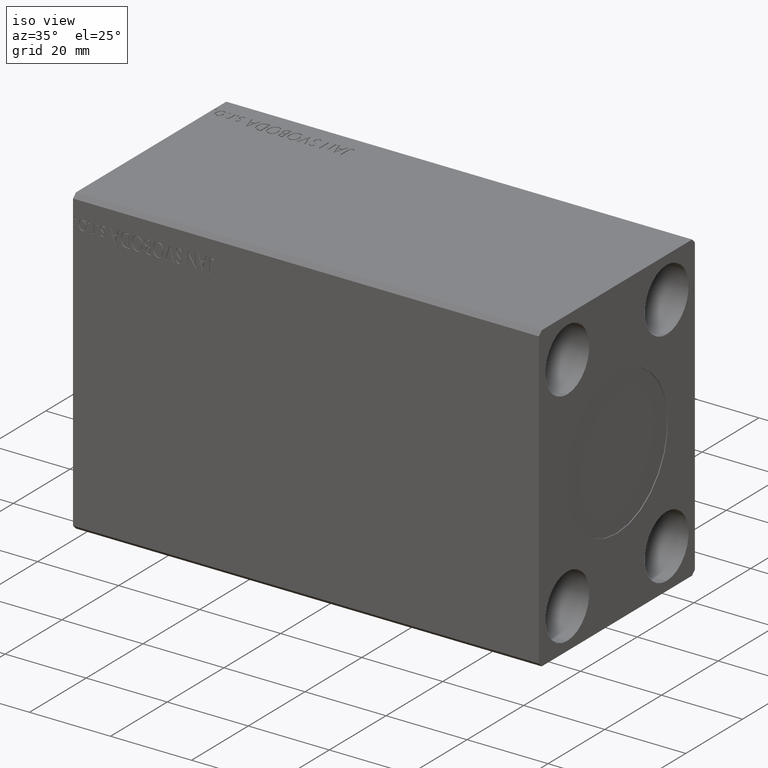
[diagram: clean part render]
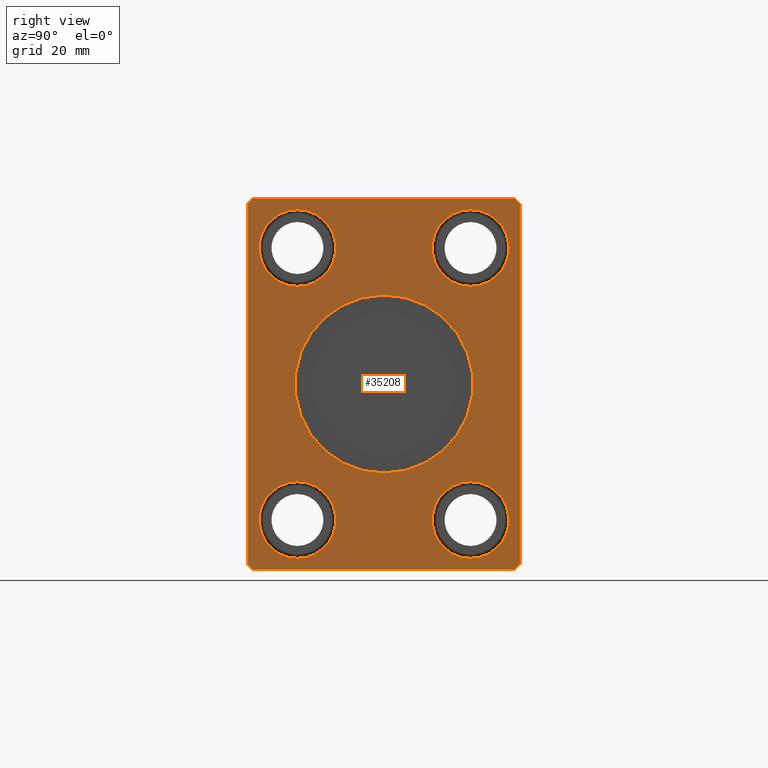
[diagram: tour spotlight — one face highlighted and labeled with its STEP entity id]
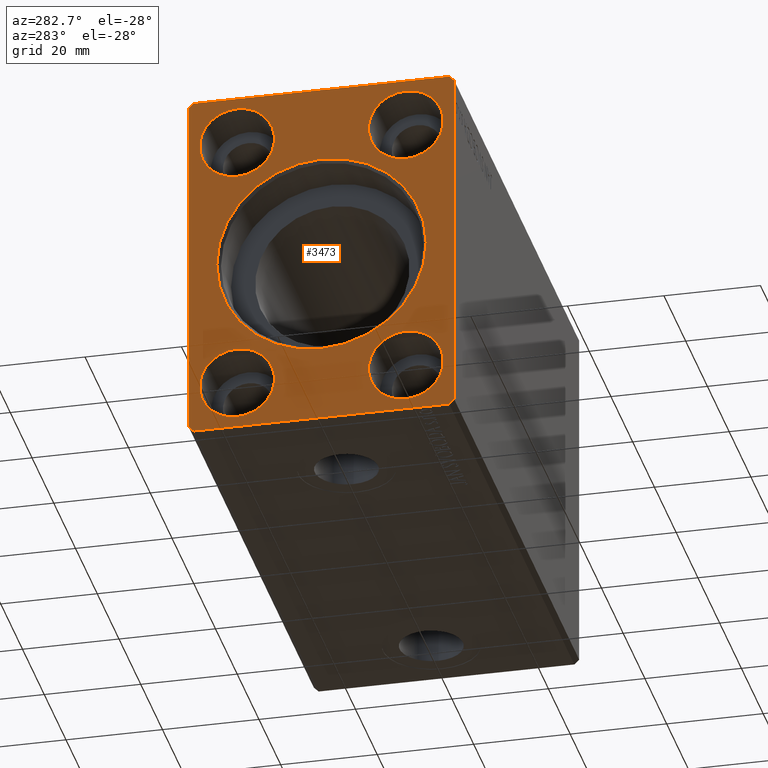
[diagram: tour spotlight — one face highlighted and labeled with its STEP entity id]
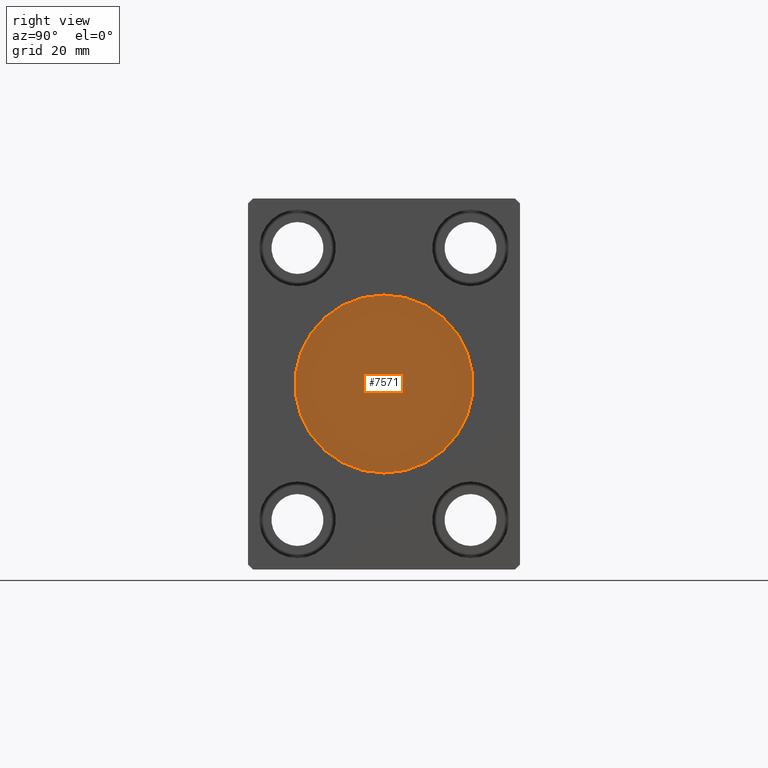
[diagram: tour spotlight — one face highlighted and labeled with its STEP entity id]
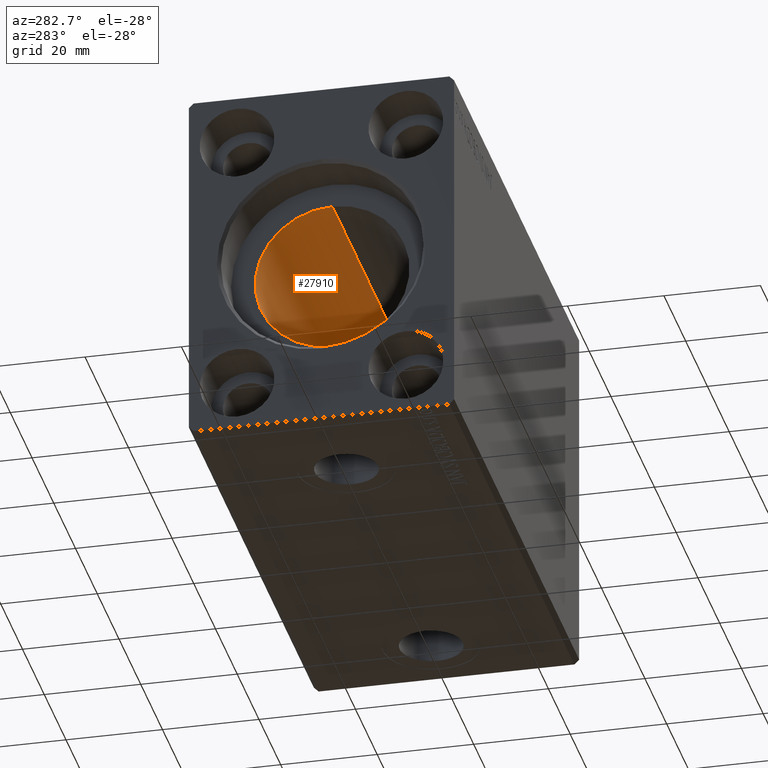
[diagram: tour spotlight — one face highlighted and labeled with its STEP entity id]
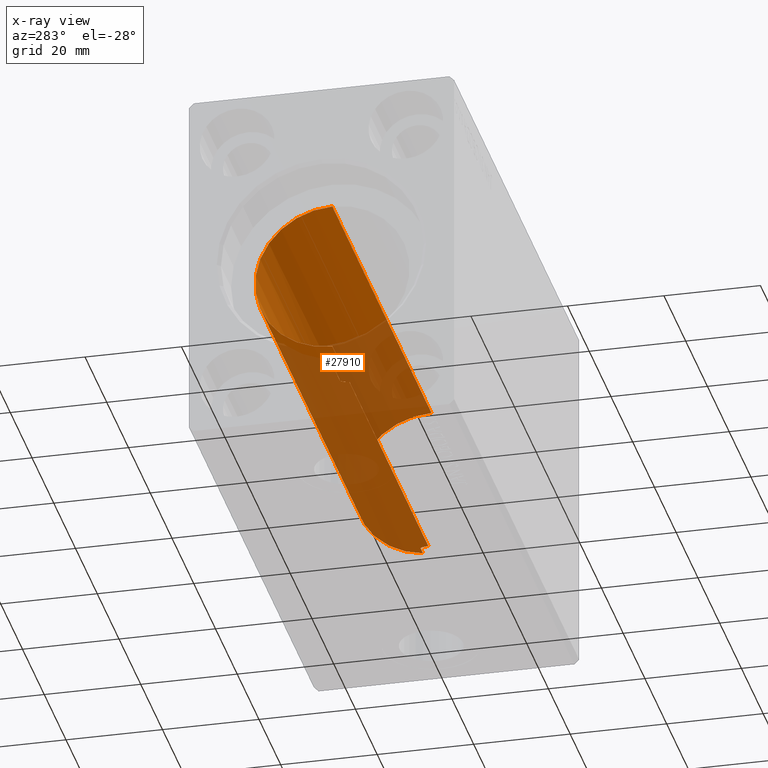
[diagram: x-ray of the same camera — body ghosted, this tour face saturated]
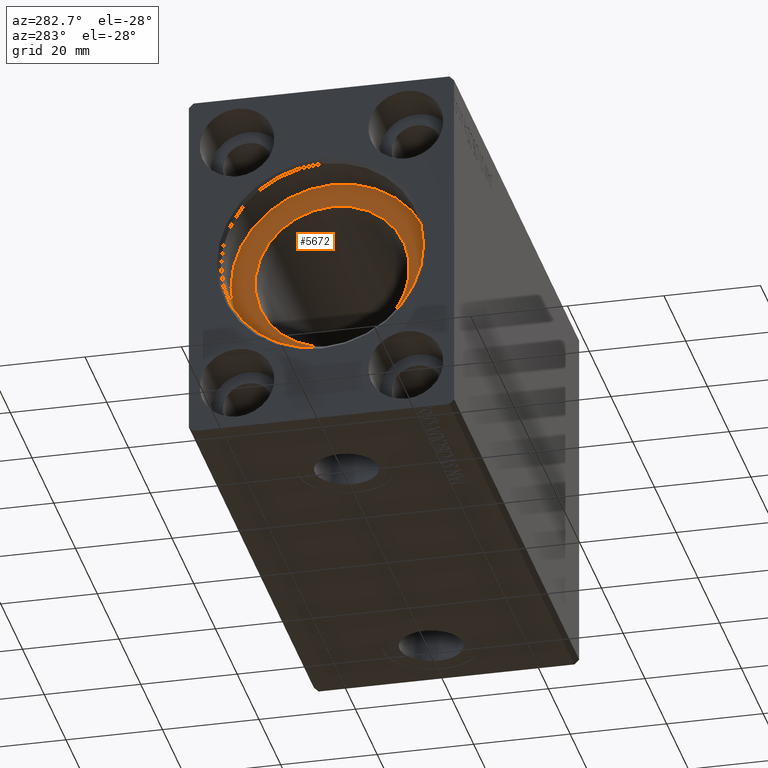
[diagram: tour spotlight — one face highlighted and labeled with its STEP entity id]
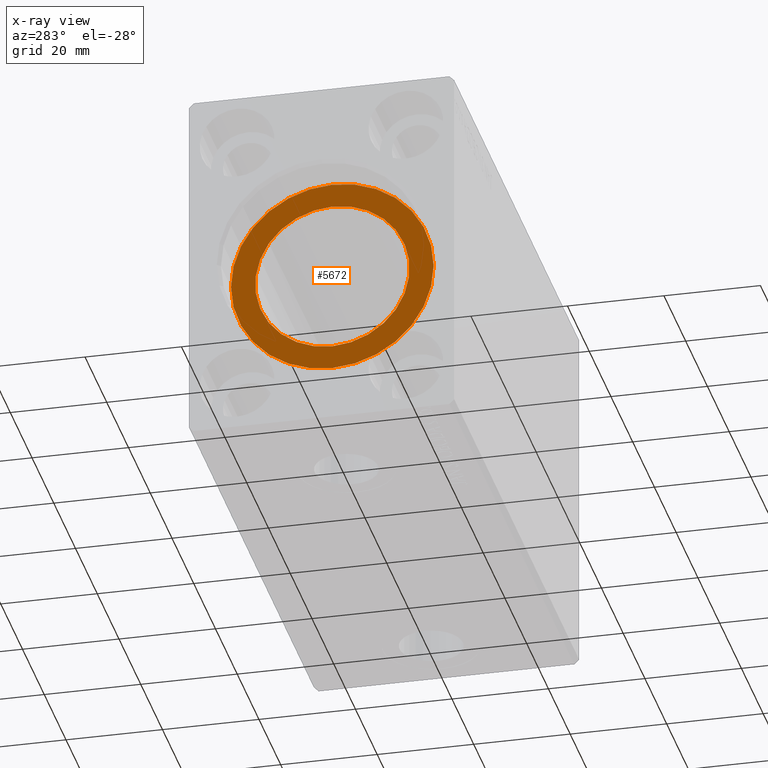
[diagram: x-ray of the same camera — body ghosted, this tour face saturated]
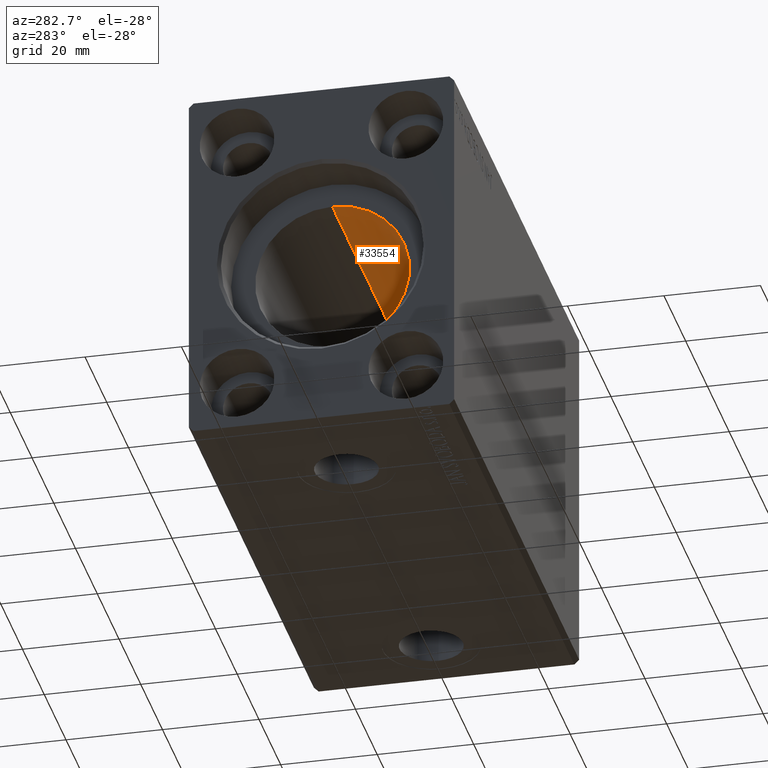
[diagram: tour spotlight — one face highlighted and labeled with its STEP entity id]
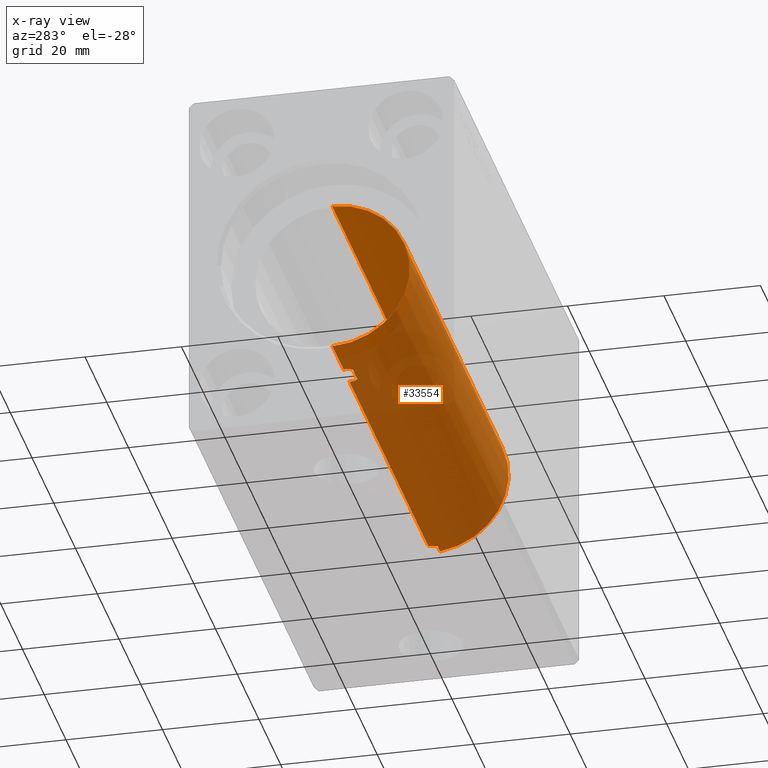
[diagram: x-ray of the same camera — body ghosted, this tour face saturated]
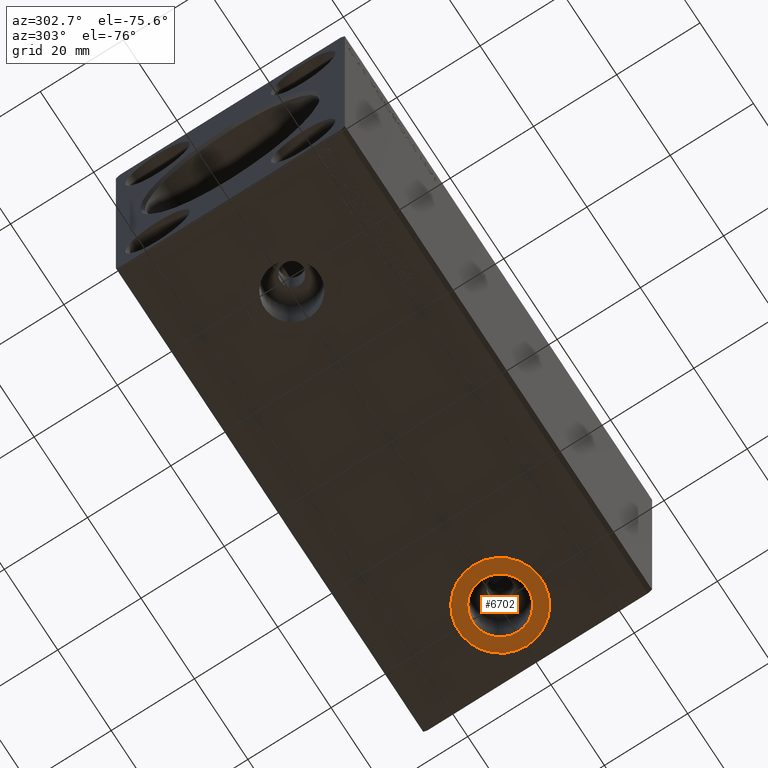
[diagram: tour spotlight — one face highlighted and labeled with its STEP entity id]
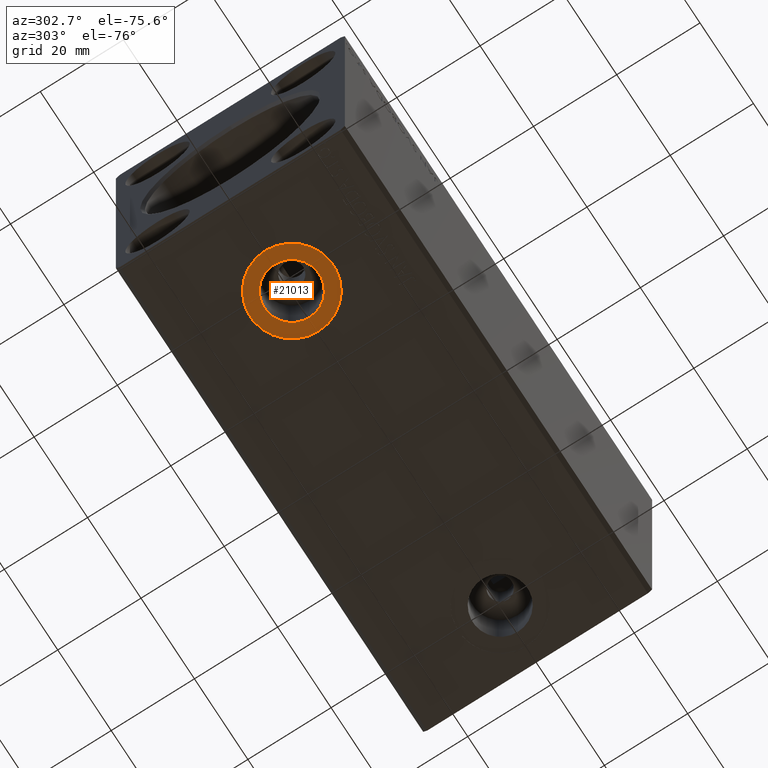
[diagram: tour spotlight — one face highlighted and labeled with its STEP entity id]
A machine part: a face-by-face anatomy tour. The part has 826 B-rep faces; the first image is the clean iso view, then the 8 largest visible faces are spotlighted one at a time (largest first), each with its STEP entity span.

Face 1 — right view, entity #35208. In plain terms, the highlighted planar face has unit normal (1, 0, 0).
Definition (entity closure, byte-faithful):
#224 = EDGE_LOOP ( 'NONE', ( #25638, #6411 ) ) ;
#368 = DIRECTION ( 'NONE',  ( 0.000000000000000000, -1.000000000000000000, 0.000000000000000000 ) ) ;
#565 = CARTESIAN_POINT ( 'NONE',  ( 115.0000000000000000, 26.50000000000000711, -37.49999999999999289 ) ) ;
#572 = CARTESIAN_POINT ( 'NONE',  ( 115.0000000000000000, 26.50000000000000355, 37.50000000000000711 ) ) ;
#679 = LINE ( 'NONE', #39710, #15360 ) ;
#695 = AXIS2_PLACEMENT_3D ( 'NONE', #14157, #40026, #10512 ) ;
#823 = VERTEX_POINT ( 'NONE', #37144 ) ;
#930 = CIRCLE ( 'NONE', #1612, 7.750000000000003553 ) ;
#1387 = CIRCLE ( 'NONE', #37200, 18.00000000000000000 ) ;
#1612 = AXIS2_PLACEMENT_3D ( 'NONE', #4254, #13347, #7089 ) ;
#1823 = CARTESIAN_POINT ( 'NONE',  ( 115.0000000000000000, -17.50000000000000000, -19.74999999999999645 ) ) ;
#2153 = EDGE_LOOP ( 'NONE', ( #17379, #29488 ) ) ;
#2545 = CARTESIAN_POINT ( 'NONE',  ( 115.0000000000000000, -27.50000000000000355, -36.49999999999998579 ) ) ;
#3000 = DIRECTION ( 'NONE',  ( 1.000000000000000000, 0.000000000000000000, 0.000000000000000000 ) ) ;
#3503 = CARTESIAN_POINT ( 'NONE',  ( 115.0000000000000000, 26.50000000000000355, 37.50000000000000711 ) ) ;
#3868 = EDGE_CURVE ( 'NONE', #25476, #28021, #7664, .T. ) ;
#4254 = CARTESIAN_POINT ( 'NONE',  ( 115.0000000000000000, -17.50000000000000000, 27.50000000000000000 ) ) ;
#4608 = CARTESIAN_POINT ( 'NONE',  ( 115.0000000000000000, -17.50000000000000000, 19.74999999999999645 ) ) ;
#4632 = CARTESIAN_POINT ( 'NONE',  ( 115.0000000000000000, -27.50000000000000711, 36.50000000000000711 ) ) ;
#4681 = EDGE_CURVE ( 'NONE', #12602, #6986, #33253, .T. ) ;
#5219 = CARTESIAN_POINT ( 'NONE',  ( 115.0000000000000000, -26.50000000000000711, 37.50000000000000711 ) ) ;
#5475 = CARTESIAN_POINT ( 'NONE',  ( 115.0000000000000000, 17.50000000000000000, 27.50000000000000000 ) ) ;
#5560 = DIRECTION ( 'NONE',  ( 0.000000000000000000, 1.000000000000000000, 0.000000000000000000 ) ) ;
#5868 = DIRECTION ( 'NONE',  ( 0.000000000000000000, -0.7071067811865474617, -0.7071067811865474617 ) ) ;
#6013 = FACE_BOUND ( 'NONE', #31904, .T. ) ;
#6411 = ORIENTED_EDGE ( 'NONE', *, *, #41131, .F. ) ;
#6721 = ORIENTED_EDGE ( 'NONE', *, *, #39267, .T. ) ;
#6986 = VERTEX_POINT ( 'NONE', #1823 ) ;
#7079 = AXIS2_PLACEMENT_3D ( 'NONE', #10212, #14074, #20542 ) ;
#7089 = DIRECTION ( 'NONE',  ( 0.000000000000000000, 0.000000000000000000, 1.000000000000000000 ) ) ;
#7244 = LINE ( 'NONE', #17771, #8452 ) ;
#7312 = EDGE_LOOP ( 'NONE', ( #31000, #10648, #35240, #8960, #29915, #32213, #6721, #22187 ) ) ;
#7664 = LINE ( 'NONE', #4632, #12579 ) ;
#7701 = DIRECTION ( 'NONE',  ( 0.000000000000000000, 0.000000000000000000, -1.000000000000000000 ) ) ;
#7734 = CIRCLE ( 'NONE', #7079, 7.750000000000003553 ) ;
#7875 = EDGE_CURVE ( 'NONE', #8953, #25476, #35404, .T. ) ;
#8286 = CIRCLE ( 'NONE', #42008, 7.750000000000003553 ) ;
#8449 = CARTESIAN_POINT ( 'NONE',  ( 115.0000000000000000, 27.50000000000000711, -36.49999999999999289 ) ) ;
#8452 = VECTOR ( 'NONE', #17146, 1000.000000000000114 ) ;
#8473 = AXIS2_PLACEMENT_3D ( 'NONE', #20905, #23501, #20291 ) ;
#8809 = CARTESIAN_POINT ( 'NONE',  ( 115.0000000000000000, -26.50000000000000355, -37.49999999999999289 ) ) ;
#8953 = VERTEX_POINT ( 'NONE', #26707 ) ;
#8960 = ORIENTED_EDGE ( 'NONE', *, *, #3868, .T. ) ;
#9010 = LINE ( 'NONE', #2545, #27637 ) ;
#9403 = VERTEX_POINT ( 'NONE', #40854 ) ;
#9677 = FACE_BOUND ( 'NONE', #224, .T. ) ;
#9985 = CARTESIAN_POINT ( 'NONE',  ( 115.0000000000000000, -27.50000000000000711, 36.50000000000000711 ) ) ;
#10212 = CARTESIAN_POINT ( 'NONE',  ( 115.0000000000000000, -17.50000000000000000, -27.50000000000000000 ) ) ;
#10512 = DIRECTION ( 'NONE',  ( 0.000000000000000000, 0.000000000000000000, 1.000000000000000000 ) ) ;
#10648 = ORIENTED_EDGE ( 'NONE', *, *, #14906, .T. ) ;
#10894 = DIRECTION ( 'NONE',  ( 0.000000000000000000, 4.752667057470705491E-17, -1.000000000000000000 ) ) ;
#11003 = VERTEX_POINT ( 'NONE', #33714 ) ;
#11673 = LINE ( 'NONE', #8449, #38039 ) ;
#12060 = LINE ( 'NONE', #8809, #31068 ) ;
#12579 = VECTOR ( 'NONE', #10894, 1000.000000000000000 ) ;
#12602 = VERTEX_POINT ( 'NONE', #40301 ) ;
#13192 = CIRCLE ( 'NONE', #22861, 7.750000000000003553 ) ;
#13347 = DIRECTION ( 'NONE',  ( -1.000000000000000000, -0.000000000000000000, -0.000000000000000000 ) ) ;
#14074 = DIRECTION ( 'NONE',  ( 1.000000000000000000, -0.000000000000000000, -0.000000000000000000 ) ) ;
#14147 = LINE ( 'NONE', #572, #24174 ) ;
#14157 = CARTESIAN_POINT ( 'NONE',  ( 115.0000000000000000, 17.50000000000000000, -27.50000000000000000 ) ) ;
#14235 = VERTEX_POINT ( 'NONE', #565 ) ;
#14863 = EDGE_LOOP ( 'NONE', ( #28841, #27924 ) ) ;
#14906 = EDGE_CURVE ( 'NONE', #27028, #8953, #14147, .T. ) ;
#14999 = DIRECTION ( 'NONE',  ( 1.000000000000000000, 0.000000000000000000, 0.000000000000000000 ) ) ;
#15360 = VECTOR ( 'NONE', #26975, 1000.000000000000114 ) ;
#15688 = DIRECTION ( 'NONE',  ( 0.000000000000000000, 0.7071067811865451302, -0.7071067811865500152 ) ) ;
#15947 = EDGE_CURVE ( 'NONE', #823, #14235, #12060, .T. ) ;
#16152 = DIRECTION ( 'NONE',  ( 0.000000000000000000, 0.000000000000000000, -1.000000000000000000 ) ) ;
#16792 = CARTESIAN_POINT ( 'NONE',  ( 115.0000000000000000, 2.204364238465235428E-15, 18.00000000000000000 ) ) ;
#17146 = DIRECTION ( 'NONE',  ( 0.000000000000000000, 0.7071067811865474617, 0.7071067811865474617 ) ) ;
#17379 = ORIENTED_EDGE ( 'NONE', *, *, #42020, .T. ) ;
#17484 = VECTOR ( 'NONE', #5868, 1000.000000000000114 ) ;
#17707 = CARTESIAN_POINT ( 'NONE',  ( 115.0000000000000000, 27.50000000000000711, -36.49999999999999289 ) ) ;
#17771 = CARTESIAN_POINT ( 'NONE',  ( 115.0000000000000000, 26.50000000000000711, -37.49999999999999289 ) ) ;
#18029 = CARTESIAN_POINT ( 'NONE',  ( 115.0000000000000000, 0.000000000000000000, 0.000000000000000000 ) ) ;
#19382 = CARTESIAN_POINT ( 'NONE',  ( 115.0000000000000000, 0.000000000000000000, 0.000000000000000000 ) ) ;
#19811 = ORIENTED_EDGE ( 'NONE', *, *, #4681, .F. ) ;
#20147 = EDGE_CURVE ( 'NONE', #42534, #41281, #11673, .T. ) ;
#20291 = DIRECTION ( 'NONE',  ( 0.000000000000000000, 0.000000000000000000, -1.000000000000000000 ) ) ;
#20542 = DIRECTION ( 'NONE',  ( 0.000000000000000000, 0.000000000000000000, -1.000000000000000000 ) ) ;
#20905 = CARTESIAN_POINT ( 'NONE',  ( 115.0000000000000000, 17.50000000000000000, 27.50000000000000000 ) ) ;
#20969 = CARTESIAN_POINT ( 'NONE',  ( 115.0000000000000000, 17.50000000000000000, -35.25000000000000000 ) ) ;
#21079 = CARTESIAN_POINT ( 'NONE',  ( 115.0000000000000000, 0.000000000000000000, -18.00000000000000000 ) ) ;
#22158 = CARTESIAN_POINT ( 'NONE',  ( 115.0000000000000000, -17.50000000000000000, -27.50000000000000000 ) ) ;
#22187 = ORIENTED_EDGE ( 'NONE', *, *, #20147, .T. ) ;
#22610 = FACE_BOUND ( 'NONE', #35058, .T. ) ;
#22861 = AXIS2_PLACEMENT_3D ( 'NONE', #5475, #37596, #28111 ) ;
#23501 = DIRECTION ( 'NONE',  ( 1.000000000000000000, -0.000000000000000000, -0.000000000000000000 ) ) ;
#23503 = CIRCLE ( 'NONE', #26229, 18.00000000000000000 ) ;
#23627 = AXIS2_PLACEMENT_3D ( 'NONE', #22158, #35310, #32926 ) ;
#24142 = VERTEX_POINT ( 'NONE', #21079 ) ;
#24174 = VECTOR ( 'NONE', #368, 1000.000000000000000 ) ;
#24937 = EDGE_CURVE ( 'NONE', #38898, #32970, #27445, .T. ) ;
#25476 = VERTEX_POINT ( 'NONE', #9985 ) ;
#25609 = CARTESIAN_POINT ( 'NONE',  ( 115.0000000000000000, 17.50000000000000000, -19.74999999999999645 ) ) ;
#25638 = ORIENTED_EDGE ( 'NONE', *, *, #36613, .F. ) ;
#26057 = FACE_OUTER_BOUND ( 'NONE', #7312, .T. ) ;
#26093 = AXIS2_PLACEMENT_3D ( 'NONE', #42608, #42404, #39797 ) ;
#26229 = AXIS2_PLACEMENT_3D ( 'NONE', #30337, #27116, #7701 ) ;
#26707 = CARTESIAN_POINT ( 'NONE',  ( 115.0000000000000000, -26.50000000000000711, 37.50000000000000711 ) ) ;
#26840 = EDGE_CURVE ( 'NONE', #32970, #38898, #39258, .T. ) ;
#26975 = DIRECTION ( 'NONE',  ( 0.000000000000000000, -0.7071067811865474617, 0.7071067811865474617 ) ) ;
#27028 = VERTEX_POINT ( 'NONE', #3503 ) ;
#27063 = CIRCLE ( 'NONE', #8473, 7.750000000000003553 ) ;
#27116 = DIRECTION ( 'NONE',  ( 1.000000000000000000, 0.000000000000000000, 0.000000000000000000 ) ) ;
#27125 = ORIENTED_EDGE ( 'NONE', *, *, #26840, .T. ) ;
#27445 = CIRCLE ( 'NONE', #26093, 7.750000000000003553 ) ;
#27637 = VECTOR ( 'NONE', #15688, 1000.000000000000114 ) ;
#27780 = EDGE_CURVE ( 'NONE', #24142, #42124, #1387, .T. ) ;
#27924 = ORIENTED_EDGE ( 'NONE', *, *, #35359, .F. ) ;
#28021 = VERTEX_POINT ( 'NONE', #34577 ) ;
#28111 = DIRECTION ( 'NONE',  ( 0.000000000000000000, 0.000000000000000000, -1.000000000000000000 ) ) ;
#28149 = DIRECTION ( 'NONE',  ( 0.000000000000000000, 0.000000000000000000, -1.000000000000000000 ) ) ;
#28720 = EDGE_CURVE ( 'NONE', #11003, #34419, #8286, .T. ) ;
#28841 = ORIENTED_EDGE ( 'NONE', *, *, #27780, .F. ) ;
#29488 = ORIENTED_EDGE ( 'NONE', *, *, #28720, .T. ) ;
#29915 = ORIENTED_EDGE ( 'NONE', *, *, #32902, .T. ) ;
#29930 = CARTESIAN_POINT ( 'NONE',  ( 115.0000000000000000, 27.50000000000000355, 36.50000000000000711 ) ) ;
#30337 = CARTESIAN_POINT ( 'NONE',  ( 115.0000000000000000, 0.000000000000000000, 0.000000000000000000 ) ) ;
#31000 = ORIENTED_EDGE ( 'NONE', *, *, #40275, .T. ) ;
#31068 = VECTOR ( 'NONE', #5560, 1000.000000000000000 ) ;
#31904 = EDGE_LOOP ( 'NONE', ( #33911, #27125 ) ) ;
#32213 = ORIENTED_EDGE ( 'NONE', *, *, #15947, .T. ) ;
#32902 = EDGE_CURVE ( 'NONE', #28021, #823, #9010, .T. ) ;
#32926 = DIRECTION ( 'NONE',  ( 0.000000000000000000, 0.000000000000000000, -1.000000000000000000 ) ) ;
#32970 = VERTEX_POINT ( 'NONE', #25609 ) ;
#33253 = CIRCLE ( 'NONE', #23627, 7.750000000000003553 ) ;
#33714 = CARTESIAN_POINT ( 'NONE',  ( 115.0000000000000000, -17.50000000000000000, 35.25000000000000000 ) ) ;
#33911 = ORIENTED_EDGE ( 'NONE', *, *, #24937, .T. ) ;
#34419 = VERTEX_POINT ( 'NONE', #4608 ) ;
#34577 = CARTESIAN_POINT ( 'NONE',  ( 115.0000000000000000, -27.50000000000000355, -36.49999999999998579 ) ) ;
#34871 = DIRECTION ( 'NONE',  ( 0.000000000000000000, 0.000000000000000000, 1.000000000000000000 ) ) ;
#35058 = EDGE_LOOP ( 'NONE', ( #19811, #40029 ) ) ;
#35194 = DIRECTION ( 'NONE',  ( -1.000000000000000000, -0.000000000000000000, -0.000000000000000000 ) ) ;
#35208 = ADVANCED_FACE ( 'NONE', ( #38775, #36189, #6013, #26057, #22610, #9677 ), #35757, .T. ) ;
#35240 = ORIENTED_EDGE ( 'NONE', *, *, #7875, .T. ) ;
#35310 = DIRECTION ( 'NONE',  ( 1.000000000000000000, -0.000000000000000000, -0.000000000000000000 ) ) ;
#35359 = EDGE_CURVE ( 'NONE', #42124, #24142, #23503, .T. ) ;
#35404 = LINE ( 'NONE', #5219, #17484 ) ;
#35757 = PLANE ( 'NONE',  #35896 ) ;
#35896 = AXIS2_PLACEMENT_3D ( 'NONE', #19382, #3000, #16152 ) ;
#36189 = FACE_BOUND ( 'NONE', #2153, .T. ) ;
#36244 = VERTEX_POINT ( 'NONE', #37023 ) ;
#36613 = EDGE_CURVE ( 'NONE', #36244, #9403, #13192, .T. ) ;
#37023 = CARTESIAN_POINT ( 'NONE',  ( 115.0000000000000000, 17.50000000000000000, 19.74999999999999645 ) ) ;
#37144 = CARTESIAN_POINT ( 'NONE',  ( 115.0000000000000000, -26.50000000000000355, -37.49999999999999289 ) ) ;
#37200 = AXIS2_PLACEMENT_3D ( 'NONE', #18029, #14999, #28149 ) ;
#37596 = DIRECTION ( 'NONE',  ( 1.000000000000000000, -0.000000000000000000, -0.000000000000000000 ) ) ;
#38039 = VECTOR ( 'NONE', #41412, 1000.000000000000000 ) ;
#38731 = EDGE_CURVE ( 'NONE', #6986, #12602, #7734, .T. ) ;
#38775 = FACE_BOUND ( 'NONE', #14863, .T. ) ;
#38898 = VERTEX_POINT ( 'NONE', #20969 ) ;
#39258 = CIRCLE ( 'NONE', #695, 7.750000000000003553 ) ;
#39267 = EDGE_CURVE ( 'NONE', #14235, #42534, #7244, .T. ) ;
#39710 = CARTESIAN_POINT ( 'NONE',  ( 115.0000000000000000, 27.50000000000000355, 36.50000000000000711 ) ) ;
#39797 = DIRECTION ( 'NONE',  ( 0.000000000000000000, 0.000000000000000000, 1.000000000000000000 ) ) ;
#40026 = DIRECTION ( 'NONE',  ( -1.000000000000000000, -0.000000000000000000, -0.000000000000000000 ) ) ;
#40029 = ORIENTED_EDGE ( 'NONE', *, *, #38731, .F. ) ;
#40275 = EDGE_CURVE ( 'NONE', #41281, #27028, #679, .T. ) ;
#40301 = CARTESIAN_POINT ( 'NONE',  ( 115.0000000000000000, -17.50000000000000000, -35.25000000000000000 ) ) ;
#40854 = CARTESIAN_POINT ( 'NONE',  ( 115.0000000000000000, 17.50000000000000000, 35.25000000000000000 ) ) ;
#41131 = EDGE_CURVE ( 'NONE', #9403, #36244, #27063, .T. ) ;
#41281 = VERTEX_POINT ( 'NONE', #29930 ) ;
#41412 = DIRECTION ( 'NONE',  ( 0.000000000000000000, -4.752667057470704875E-17, 1.000000000000000000 ) ) ;
#41445 = CARTESIAN_POINT ( 'NONE',  ( 115.0000000000000000, -17.50000000000000000, 27.50000000000000000 ) ) ;
#42008 = AXIS2_PLACEMENT_3D ( 'NONE', #41445, #35194, #34871 ) ;
#42020 = EDGE_CURVE ( 'NONE', #34419, #11003, #930, .T. ) ;
#42124 = VERTEX_POINT ( 'NONE', #16792 ) ;
#42404 = DIRECTION ( 'NONE',  ( -1.000000000000000000, -0.000000000000000000, -0.000000000000000000 ) ) ;
#42534 = VERTEX_POINT ( 'NONE', #17707 ) ;
#42608 = CARTESIAN_POINT ( 'NONE',  ( 115.0000000000000000, 17.50000000000000000, -27.50000000000000000 ) ) ;

Face 2 — auxiliary view, entity #3473. In plain terms, the highlighted planar face has unit normal (1, 0, 0).
Definition (entity closure, byte-faithful):
#1026 = CARTESIAN_POINT ( 'NONE',  ( 0.000000000000000000, 27.50000000000000355, 36.50000000000000711 ) ) ;
#1263 = CARTESIAN_POINT ( 'NONE',  ( 0.000000000000000000, 26.50000000000000355, 37.50000000000000711 ) ) ;
#1293 = CARTESIAN_POINT ( 'NONE',  ( 0.000000000000000000, -17.50000000000000000, 35.25000000000000000 ) ) ;
#1318 = VERTEX_POINT ( 'NONE', #20678 ) ;
#1332 = VECTOR ( 'NONE', #31051, 1000.000000000000000 ) ;
#1367 = ORIENTED_EDGE ( 'NONE', *, *, #3395, .T. ) ;
#2006 = DIRECTION ( 'NONE',  ( 1.000000000000000000, -0.000000000000000000, -0.000000000000000000 ) ) ;
#2164 = ORIENTED_EDGE ( 'NONE', *, *, #12506, .F. ) ;
#2267 = CARTESIAN_POINT ( 'NONE',  ( 0.000000000000000000, 17.50000000000000000, -27.50000000000000000 ) ) ;
#2383 = CARTESIAN_POINT ( 'NONE',  ( 0.000000000000000000, 0.000000000000000000, 0.000000000000000000 ) ) ;
#2520 = EDGE_LOOP ( 'NONE', ( #36265, #21248 ) ) ;
#2835 = AXIS2_PLACEMENT_3D ( 'NONE', #14199, #40912, #10954 ) ;
#2989 = CIRCLE ( 'NONE', #7776, 7.750000000000003553 ) ;
#3023 = DIRECTION ( 'NONE',  ( 1.000000000000000000, 0.000000000000000000, 0.000000000000000000 ) ) ;
#3221 = EDGE_LOOP ( 'NONE', ( #40635, #30421 ) ) ;
#3327 = EDGE_CURVE ( 'NONE', #1318, #9708, #20810, .T. ) ;
#3395 = EDGE_CURVE ( 'NONE', #9708, #1318, #7066, .T. ) ;
#3473 = ADVANCED_FACE ( 'NONE', ( #16371, #29530, #31908, #21987, #26293, #35128 ), #5593, .F. ) ;
#3661 = CARTESIAN_POINT ( 'NONE',  ( 0.000000000000000000, 17.50000000000000000, -35.25000000000000000 ) ) ;
#3954 = ORIENTED_EDGE ( 'NONE', *, *, #11135, .T. ) ;
#4226 = VECTOR ( 'NONE', #39041, 1000.000000000000000 ) ;
#4276 = AXIS2_PLACEMENT_3D ( 'NONE', #18123, #20936, #41377 ) ;
#4901 = VERTEX_POINT ( 'NONE', #19948 ) ;
#5319 = VERTEX_POINT ( 'NONE', #19544 ) ;
#5513 = CARTESIAN_POINT ( 'NONE',  ( 0.000000000000000000, 27.50000000000000711, -36.49999999999999289 ) ) ;
#5593 = PLANE ( 'NONE',  #13946 ) ;
#6054 = VERTEX_POINT ( 'NONE', #5513 ) ;
#6864 = LINE ( 'NONE', #1026, #34502 ) ;
#7066 = CIRCLE ( 'NONE', #9805, 21.70000000000003837 ) ;
#7195 = VERTEX_POINT ( 'NONE', #10829 ) ;
#7768 = AXIS2_PLACEMENT_3D ( 'NONE', #16542, #24219, #10855 ) ;
#7776 = AXIS2_PLACEMENT_3D ( 'NONE', #7846, #2006, #24637 ) ;
#7846 = CARTESIAN_POINT ( 'NONE',  ( 0.000000000000000000, -17.50000000000000000, -27.50000000000000000 ) ) ;
#7872 = EDGE_CURVE ( 'NONE', #10546, #39942, #9104, .T. ) ;
#8388 = CIRCLE ( 'NONE', #32488, 7.750000000000003553 ) ;
#8773 = EDGE_LOOP ( 'NONE', ( #40669, #27745, #2164, #19879, #24998, #28865, #14955, #19196 ) ) ;
#8788 = DIRECTION ( 'NONE',  ( 1.000000000000000000, -0.000000000000000000, -0.000000000000000000 ) ) ;
#8940 = DIRECTION ( 'NONE',  ( -1.000000000000000000, 0.000000000000000000, 0.000000000000000000 ) ) ;
#9104 = LINE ( 'NONE', #41001, #9912 ) ;
#9307 = CARTESIAN_POINT ( 'NONE',  ( 0.000000000000000000, -17.50000000000000000, 27.50000000000000000 ) ) ;
#9452 = LINE ( 'NONE', #42626, #9727 ) ;
#9708 = VERTEX_POINT ( 'NONE', #28077 ) ;
#9727 = VECTOR ( 'NONE', #13104, 1000.000000000000114 ) ;
#9805 = AXIS2_PLACEMENT_3D ( 'NONE', #28875, #3023, #35566 ) ;
#9912 = VECTOR ( 'NONE', #37977, 1000.000000000000000 ) ;
#10126 = DIRECTION ( 'NONE',  ( 0.000000000000000000, 0.000000000000000000, -1.000000000000000000 ) ) ;
#10546 = VERTEX_POINT ( 'NONE', #30640 ) ;
#10686 = EDGE_CURVE ( 'NONE', #37799, #10546, #39017, .T. ) ;
#10829 = CARTESIAN_POINT ( 'NONE',  ( 0.000000000000000000, 17.50000000000000000, 19.74999999999999645 ) ) ;
#10855 = DIRECTION ( 'NONE',  ( 0.000000000000000000, 0.000000000000000000, -1.000000000000000000 ) ) ;
#10954 = DIRECTION ( 'NONE',  ( 0.000000000000000000, 0.000000000000000000, 1.000000000000000000 ) ) ;
#10963 = CIRCLE ( 'NONE', #36450, 7.750000000000003553 ) ;
#11135 = EDGE_CURVE ( 'NONE', #4901, #19347, #2989, .T. ) ;
#11915 = AXIS2_PLACEMENT_3D ( 'NONE', #9307, #42484, #36035 ) ;
#12181 = DIRECTION ( 'NONE',  ( 0.000000000000000000, 0.000000000000000000, 1.000000000000000000 ) ) ;
#12240 = DIRECTION ( 'NONE',  ( 0.000000000000000000, 0.000000000000000000, -1.000000000000000000 ) ) ;
#12506 = EDGE_CURVE ( 'NONE', #39942, #6054, #38598, .T. ) ;
#13104 = DIRECTION ( 'NONE',  ( 0.000000000000000000, -0.7071067811865474617, -0.7071067811865474617 ) ) ;
#13946 = AXIS2_PLACEMENT_3D ( 'NONE', #2383, #16812, #10126 ) ;
#14059 = VECTOR ( 'NONE', #25457, 1000.000000000000114 ) ;
#14199 = CARTESIAN_POINT ( 'NONE',  ( 0.000000000000000000, 17.50000000000000000, -27.50000000000000000 ) ) ;
#14677 = EDGE_CURVE ( 'NONE', #18286, #35743, #28978, .T. ) ;
#14955 = ORIENTED_EDGE ( 'NONE', *, *, #29600, .F. ) ;
#16180 = CARTESIAN_POINT ( 'NONE',  ( 0.000000000000000000, -27.50000000000000355, -36.49999999999998579 ) ) ;
#16371 = FACE_BOUND ( 'NONE', #2520, .T. ) ;
#16499 = EDGE_CURVE ( 'NONE', #6054, #34371, #36239, .T. ) ;
#16542 = CARTESIAN_POINT ( 'NONE',  ( 0.000000000000000000, 17.50000000000000000, 27.50000000000000000 ) ) ;
#16699 = AXIS2_PLACEMENT_3D ( 'NONE', #34532, #31087, #27634 ) ;
#16812 = DIRECTION ( 'NONE',  ( 1.000000000000000000, 0.000000000000000000, 0.000000000000000000 ) ) ;
#17344 = EDGE_LOOP ( 'NONE', ( #3954, #24576 ) ) ;
#18123 = CARTESIAN_POINT ( 'NONE',  ( 0.000000000000000000, 0.000000000000000000, 0.000000000000000000 ) ) ;
#18286 = VERTEX_POINT ( 'NONE', #3661 ) ;
#18802 = VECTOR ( 'NONE', #38580, 1000.000000000000114 ) ;
#19196 = ORIENTED_EDGE ( 'NONE', *, *, #32765, .F. ) ;
#19347 = VERTEX_POINT ( 'NONE', #27983 ) ;
#19544 = CARTESIAN_POINT ( 'NONE',  ( 0.000000000000000000, -17.50000000000000000, 19.74999999999999645 ) ) ;
#19875 = ORIENTED_EDGE ( 'NONE', *, *, #3327, .T. ) ;
#19879 = ORIENTED_EDGE ( 'NONE', *, *, #7872, .F. ) ;
#19948 = CARTESIAN_POINT ( 'NONE',  ( 0.000000000000000000, -17.50000000000000000, -19.74999999999999645 ) ) ;
#20002 = AXIS2_PLACEMENT_3D ( 'NONE', #37882, #8788, #12240 ) ;
#20255 = EDGE_CURVE ( 'NONE', #5319, #23816, #31152, .T. ) ;
#20337 = CARTESIAN_POINT ( 'NONE',  ( 0.000000000000000000, -27.50000000000000711, 36.50000000000000711 ) ) ;
#20678 = CARTESIAN_POINT ( 'NONE',  ( 0.000000000000000000, 0.000000000000000000, 21.70000000000003837 ) ) ;
#20810 = CIRCLE ( 'NONE', #4276, 21.70000000000003837 ) ;
#20936 = DIRECTION ( 'NONE',  ( 1.000000000000000000, 0.000000000000000000, 0.000000000000000000 ) ) ;
#21142 = LINE ( 'NONE', #34723, #1332 ) ;
#21248 = ORIENTED_EDGE ( 'NONE', *, *, #20255, .F. ) ;
#21987 = FACE_OUTER_BOUND ( 'NONE', #8773, .T. ) ;
#23138 = ORIENTED_EDGE ( 'NONE', *, *, #14677, .F. ) ;
#23816 = VERTEX_POINT ( 'NONE', #1293 ) ;
#24055 = ORIENTED_EDGE ( 'NONE', *, *, #25177, .F. ) ;
#24219 = DIRECTION ( 'NONE',  ( 1.000000000000000000, -0.000000000000000000, -0.000000000000000000 ) ) ;
#24335 = DIRECTION ( 'NONE',  ( 0.000000000000000000, -1.000000000000000000, 0.000000000000000000 ) ) ;
#24576 = ORIENTED_EDGE ( 'NONE', *, *, #32891, .T. ) ;
#24637 = DIRECTION ( 'NONE',  ( 0.000000000000000000, 0.000000000000000000, -1.000000000000000000 ) ) ;
#24871 = CARTESIAN_POINT ( 'NONE',  ( 0.000000000000000000, 17.50000000000000000, -19.74999999999999645 ) ) ;
#24998 = ORIENTED_EDGE ( 'NONE', *, *, #10686, .F. ) ;
#25177 = EDGE_CURVE ( 'NONE', #35743, #18286, #10963, .T. ) ;
#25218 = EDGE_LOOP ( 'NONE', ( #24055, #23138 ) ) ;
#25388 = DIRECTION ( 'NONE',  ( 0.000000000000000000, 0.000000000000000000, -1.000000000000000000 ) ) ;
#25457 = DIRECTION ( 'NONE',  ( 0.000000000000000000, 0.7071067811865474617, 0.7071067811865474617 ) ) ;
#25748 = EDGE_CURVE ( 'NONE', #33738, #37799, #21142, .T. ) ;
#26293 = FACE_BOUND ( 'NONE', #17344, .T. ) ;
#26581 = CARTESIAN_POINT ( 'NONE',  ( 0.000000000000000000, 26.50000000000000355, 37.50000000000000711 ) ) ;
#26953 = VERTEX_POINT ( 'NONE', #26581 ) ;
#27634 = DIRECTION ( 'NONE',  ( 0.000000000000000000, 0.000000000000000000, 1.000000000000000000 ) ) ;
#27745 = ORIENTED_EDGE ( 'NONE', *, *, #16499, .F. ) ;
#27983 = CARTESIAN_POINT ( 'NONE',  ( 0.000000000000000000, -17.50000000000000000, -35.25000000000000000 ) ) ;
#28077 = CARTESIAN_POINT ( 'NONE',  ( 0.000000000000000000, 2.657483554149761471E-15, -21.70000000000003837 ) ) ;
#28750 = EDGE_CURVE ( 'NONE', #7195, #31966, #38563, .T. ) ;
#28837 = DIRECTION ( 'NONE',  ( 1.000000000000000000, -0.000000000000000000, -0.000000000000000000 ) ) ;
#28865 = ORIENTED_EDGE ( 'NONE', *, *, #25748, .F. ) ;
#28875 = CARTESIAN_POINT ( 'NONE',  ( 0.000000000000000000, 0.000000000000000000, 0.000000000000000000 ) ) ;
#28978 = CIRCLE ( 'NONE', #2835, 7.750000000000003553 ) ;
#29050 = CARTESIAN_POINT ( 'NONE',  ( 0.000000000000000000, 17.50000000000000000, 35.25000000000000000 ) ) ;
#29143 = CARTESIAN_POINT ( 'NONE',  ( 0.000000000000000000, 27.50000000000000711, -36.49999999999999289 ) ) ;
#29147 = CIRCLE ( 'NONE', #7768, 7.750000000000003553 ) ;
#29530 = FACE_BOUND ( 'NONE', #25218, .T. ) ;
#29600 = EDGE_CURVE ( 'NONE', #30345, #33738, #9452, .T. ) ;
#30345 = VERTEX_POINT ( 'NONE', #35324 ) ;
#30421 = ORIENTED_EDGE ( 'NONE', *, *, #28750, .T. ) ;
#30624 = EDGE_LOOP ( 'NONE', ( #19875, #1367 ) ) ;
#30640 = CARTESIAN_POINT ( 'NONE',  ( 0.000000000000000000, -26.50000000000000355, -37.49999999999999289 ) ) ;
#31051 = DIRECTION ( 'NONE',  ( 0.000000000000000000, 4.752667057470705491E-17, -1.000000000000000000 ) ) ;
#31087 = DIRECTION ( 'NONE',  ( -1.000000000000000000, 0.000000000000000000, 0.000000000000000000 ) ) ;
#31103 = CARTESIAN_POINT ( 'NONE',  ( 0.000000000000000000, 26.50000000000000711, -37.49999999999999289 ) ) ;
#31152 = CIRCLE ( 'NONE', #11915, 7.750000000000003553 ) ;
#31908 = FACE_BOUND ( 'NONE', #30624, .T. ) ;
#31966 = VERTEX_POINT ( 'NONE', #29050 ) ;
#32488 = AXIS2_PLACEMENT_3D ( 'NONE', #38758, #28837, #25388 ) ;
#32765 = EDGE_CURVE ( 'NONE', #26953, #30345, #40698, .T. ) ;
#32891 = EDGE_CURVE ( 'NONE', #19347, #4901, #8388, .T. ) ;
#33738 = VERTEX_POINT ( 'NONE', #20337 ) ;
#34371 = VERTEX_POINT ( 'NONE', #36135 ) ;
#34502 = VECTOR ( 'NONE', #39830, 1000.000000000000114 ) ;
#34532 = CARTESIAN_POINT ( 'NONE',  ( 0.000000000000000000, -17.50000000000000000, 27.50000000000000000 ) ) ;
#34723 = CARTESIAN_POINT ( 'NONE',  ( 0.000000000000000000, -27.50000000000000711, 36.50000000000000711 ) ) ;
#35128 = FACE_BOUND ( 'NONE', #3221, .T. ) ;
#35261 = EDGE_CURVE ( 'NONE', #34371, #26953, #6864, .T. ) ;
#35324 = CARTESIAN_POINT ( 'NONE',  ( 0.000000000000000000, -26.50000000000000711, 37.50000000000000711 ) ) ;
#35566 = DIRECTION ( 'NONE',  ( 0.000000000000000000, 0.000000000000000000, -1.000000000000000000 ) ) ;
#35743 = VERTEX_POINT ( 'NONE', #24871 ) ;
#35935 = VECTOR ( 'NONE', #24335, 1000.000000000000000 ) ;
#36035 = DIRECTION ( 'NONE',  ( 0.000000000000000000, 0.000000000000000000, 1.000000000000000000 ) ) ;
#36135 = CARTESIAN_POINT ( 'NONE',  ( 0.000000000000000000, 27.50000000000000355, 36.50000000000000711 ) ) ;
#36239 = LINE ( 'NONE', #29143, #4226 ) ;
#36265 = ORIENTED_EDGE ( 'NONE', *, *, #39701, .F. ) ;
#36450 = AXIS2_PLACEMENT_3D ( 'NONE', #2267, #8940, #12181 ) ;
#37799 = VERTEX_POINT ( 'NONE', #39676 ) ;
#37882 = CARTESIAN_POINT ( 'NONE',  ( 0.000000000000000000, 17.50000000000000000, 27.50000000000000000 ) ) ;
#37977 = DIRECTION ( 'NONE',  ( 0.000000000000000000, 1.000000000000000000, 0.000000000000000000 ) ) ;
#38563 = CIRCLE ( 'NONE', #20002, 7.750000000000003553 ) ;
#38580 = DIRECTION ( 'NONE',  ( 0.000000000000000000, 0.7071067811865451302, -0.7071067811865500152 ) ) ;
#38598 = LINE ( 'NONE', #39473, #14059 ) ;
#38758 = CARTESIAN_POINT ( 'NONE',  ( 0.000000000000000000, -17.50000000000000000, -27.50000000000000000 ) ) ;
#39017 = LINE ( 'NONE', #16180, #18802 ) ;
#39041 = DIRECTION ( 'NONE',  ( 0.000000000000000000, -4.752667057470704875E-17, 1.000000000000000000 ) ) ;
#39473 = CARTESIAN_POINT ( 'NONE',  ( 0.000000000000000000, 26.50000000000000711, -37.49999999999999289 ) ) ;
#39676 = CARTESIAN_POINT ( 'NONE',  ( 0.000000000000000000, -27.50000000000000355, -36.49999999999998579 ) ) ;
#39701 = EDGE_CURVE ( 'NONE', #23816, #5319, #41482, .T. ) ;
#39830 = DIRECTION ( 'NONE',  ( 0.000000000000000000, -0.7071067811865474617, 0.7071067811865474617 ) ) ;
#39942 = VERTEX_POINT ( 'NONE', #31103 ) ;
#40635 = ORIENTED_EDGE ( 'NONE', *, *, #40750, .T. ) ;
#40669 = ORIENTED_EDGE ( 'NONE', *, *, #35261, .F. ) ;
#40698 = LINE ( 'NONE', #1263, #35935 ) ;
#40750 = EDGE_CURVE ( 'NONE', #31966, #7195, #29147, .T. ) ;
#40912 = DIRECTION ( 'NONE',  ( -1.000000000000000000, 0.000000000000000000, 0.000000000000000000 ) ) ;
#41001 = CARTESIAN_POINT ( 'NONE',  ( 0.000000000000000000, -26.50000000000000355, -37.49999999999999289 ) ) ;
#41377 = DIRECTION ( 'NONE',  ( 0.000000000000000000, 0.000000000000000000, -1.000000000000000000 ) ) ;
#41482 = CIRCLE ( 'NONE', #16699, 7.750000000000003553 ) ;
#42484 = DIRECTION ( 'NONE',  ( -1.000000000000000000, 0.000000000000000000, 0.000000000000000000 ) ) ;
#42626 = CARTESIAN_POINT ( 'NONE',  ( 0.000000000000000000, -26.50000000000000711, 37.50000000000000711 ) ) ;

Face 3 — right view, entity #7571. In plain terms, the highlighted planar face has unit normal (1, 0, 0).
Definition (entity closure, byte-faithful):
#1217 = CARTESIAN_POINT ( 'NONE',  ( 114.7999999999999972, 2.204364238465235428E-15, 18.00000000000000000 ) ) ;
#3035 = AXIS2_PLACEMENT_3D ( 'NONE', #28864, #5811, #8625 ) ;
#5811 = DIRECTION ( 'NONE',  ( 1.000000000000000000, 0.000000000000000000, 0.000000000000000000 ) ) ;
#7571 = ADVANCED_FACE ( 'NONE', ( #25860 ), #9479, .T. ) ;
#8625 = DIRECTION ( 'NONE',  ( 0.000000000000000000, 0.000000000000000000, -1.000000000000000000 ) ) ;
#9479 = PLANE ( 'NONE',  #3035 ) ;
#9797 = AXIS2_PLACEMENT_3D ( 'NONE', #28180, #41326, #21090 ) ;
#15197 = EDGE_LOOP ( 'NONE', ( #22508, #22544 ) ) ;
#15930 = CIRCLE ( 'NONE', #37950, 18.00000000000000000 ) ;
#16130 = VERTEX_POINT ( 'NONE', #1217 ) ;
#20145 = EDGE_CURVE ( 'NONE', #16130, #25920, #15930, .T. ) ;
#21090 = DIRECTION ( 'NONE',  ( 0.000000000000000000, 0.000000000000000000, -1.000000000000000000 ) ) ;
#21118 = EDGE_CURVE ( 'NONE', #25920, #16130, #28323, .T. ) ;
#22508 = ORIENTED_EDGE ( 'NONE', *, *, #21118, .T. ) ;
#22544 = ORIENTED_EDGE ( 'NONE', *, *, #20145, .T. ) ;
#25249 = DIRECTION ( 'NONE',  ( 1.000000000000000000, 0.000000000000000000, 0.000000000000000000 ) ) ;
#25860 = FACE_OUTER_BOUND ( 'NONE', #15197, .T. ) ;
#25920 = VERTEX_POINT ( 'NONE', #35134 ) ;
#28180 = CARTESIAN_POINT ( 'NONE',  ( 114.7999999999999972, 0.000000000000000000, 0.000000000000000000 ) ) ;
#28323 = CIRCLE ( 'NONE', #9797, 18.00000000000000000 ) ;
#28864 = CARTESIAN_POINT ( 'NONE',  ( 114.7999999999999972, 0.000000000000000000, 0.000000000000000000 ) ) ;
#34522 = CARTESIAN_POINT ( 'NONE',  ( 114.7999999999999972, 0.000000000000000000, 0.000000000000000000 ) ) ;
#35134 = CARTESIAN_POINT ( 'NONE',  ( 114.7999999999999972, 0.000000000000000000, -18.00000000000000000 ) ) ;
#37950 = AXIS2_PLACEMENT_3D ( 'NONE', #34522, #25249, #40985 ) ;
#40985 = DIRECTION ( 'NONE',  ( 0.000000000000000000, 0.000000000000000000, -1.000000000000000000 ) ) ;
#41326 = DIRECTION ( 'NONE',  ( 1.000000000000000000, 0.000000000000000000, 0.000000000000000000 ) ) ;

Face 4 — auxiliary view, entity #27910. An x-ray twin of the same camera follows (body ghosted, this face saturated) — the face is partly hidden behind the body. In plain terms, the highlighted cylindrical surface (partial cylindrical patch) has radius 16 mm, axis along (-1, -0, -0).
Definition (entity closure, byte-faithful):
#162 = DIRECTION ( 'NONE',  ( -1.000000000000000000, 0.000000000000000000, 0.000000000000000000 ) ) ;
#342 = CYLINDRICAL_SURFACE ( 'NONE', #2097, 16.00000000000000000 ) ;
#475 = ORIENTED_EDGE ( 'NONE', *, *, #33795, .F. ) ;
#667 = CARTESIAN_POINT ( 'NONE',  ( 20.47635814035335855, 1.104555034037125516, -15.96255602784426841 ) ) ;
#692 = DIRECTION ( 'NONE',  ( -1.000000000000000000, -0.000000000000000000, -0.000000000000000000 ) ) ;
#843 = CARTESIAN_POINT ( 'NONE',  ( 25.75000000000000000, 1.966672454835068530E-15, -16.00000000000000000 ) ) ;
#1030 = ORIENTED_EDGE ( 'NONE', *, *, #20169, .T. ) ;
#1186 = B_SPLINE_CURVE_WITH_KNOTS ( 'NONE', 3,
 ( #26557, #39699, #7159, #30204, #20313, #667, #13817, #1301, #7990, #30832 ),
 .UNSPECIFIED., .F., .F.,
 ( 4, 2, 2, 2, 4 ),
 ( 0.001937515079377276567, 0.002421672136522722528, 0.002905829193668168706, 0.003389986250813614450, 0.003874143307959060194 ),
 .UNSPECIFIED. ) ;
#1301 = CARTESIAN_POINT ( 'NONE',  ( 20.70828422114123057, 1.528580496451064752, -15.92742812959714982 ) ) ;
#1458 = ORIENTED_EDGE ( 'NONE', *, *, #25126, .F. ) ;
#1498 = VERTEX_POINT ( 'NONE', #30275 ) ;
#1528 = AXIS2_PLACEMENT_3D ( 'NONE', #26034, #162, #19586 ) ;
#1655 = CARTESIAN_POINT ( 'NONE',  ( 20.90894763336742912, 1.786057109949259036, -15.89999999999998970 ) ) ;
#1769 = DIRECTION ( 'NONE',  ( -1.000000000000000000, -0.000000000000000000, -0.000000000000000000 ) ) ;
#2097 = AXIS2_PLACEMENT_3D ( 'NONE', #23195, #3783, #33104 ) ;
#2902 = VECTOR ( 'NONE', #17263, 1000.000000000000000 ) ;
#3027 = CARTESIAN_POINT ( 'NONE',  ( 98.26435230214251249, 0.3237335850403359472, -15.99751506009604007 ) ) ;
#3246 = EDGE_CURVE ( 'NONE', #41765, #1498, #27380, .T. ) ;
#3316 = EDGE_CURVE ( 'NONE', #41765, #16132, #1186, .T. ) ;
#3685 = CARTESIAN_POINT ( 'NONE',  ( 20.25000000000000000, 1.952197298178576320E-15, -16.00000000000000000 ) ) ;
#3783 = DIRECTION ( 'NONE',  ( -1.000000000000000000, -0.000000000000000000, -0.000000000000000000 ) ) ;
#4098 = VECTOR ( 'NONE', #24676, 1000.000000000000000 ) ;
#5159 = CARTESIAN_POINT ( 'NONE',  ( 25.67843830749630740, 0.6438297815899759469, -15.98783114994251697 ) ) ;
#6520 = CARTESIAN_POINT ( 'NONE',  ( 101.2000000000000028, 0.000000000000000000, 16.00000000000000000 ) ) ;
#7159 = CARTESIAN_POINT ( 'NONE',  ( 20.26435230214253380, 0.3237335850403343929, -15.99751506009603652 ) ) ;
#7655 = ORIENTED_EDGE ( 'NONE', *, *, #21183, .T. ) ;
#7865 = CARTESIAN_POINT ( 'NONE',  ( 98.25000000000000000, 1.952197382189107282E-15, -16.00000000000000000 ) ) ;
#7990 = CARTESIAN_POINT ( 'NONE',  ( 20.80302300273467964, 1.662044306363391177, -15.91393043707981292 ) ) ;
#8178 = CARTESIAN_POINT ( 'NONE',  ( 25.63617786229477957, 0.7997846173174859574, -15.98073294566550473 ) ) ;
#8846 = LINE ( 'NONE', #41609, #26276 ) ;
#9325 = ORIENTED_EDGE ( 'NONE', *, *, #3316, .T. ) ;
#9647 = CARTESIAN_POINT ( 'NONE',  ( 9.999999999999994671, 0.000000000000000000, 0.000000000000000000 ) ) ;
#9697 = ORIENTED_EDGE ( 'NONE', *, *, #18569, .F. ) ;
#11105 = CARTESIAN_POINT ( 'NONE',  ( 25.09105236663257088, 1.786057109949259036, -15.89999999999998970 ) ) ;
#11850 = CARTESIAN_POINT ( 'NONE',  ( 25.73536268302067853, 0.3260974502564771282, -15.99746611559688780 ) ) ;
#12511 = DIRECTION ( 'NONE',  ( -1.000000000000000000, -0.000000000000000000, -0.000000000000000000 ) ) ;
#12938 = CARTESIAN_POINT ( 'NONE',  ( 98.54529199024536013, 1.250171241089528706, -15.95169574138015633 ) ) ;
#13200 = CIRCLE ( 'NONE', #18691, 16.00000000000000000 ) ;
#13297 = VERTEX_POINT ( 'NONE', #19622 ) ;
#13817 = CARTESIAN_POINT ( 'NONE',  ( 20.54529199024537789, 1.250171241089528928, -15.95169574138015278 ) ) ;
#14646 = CARTESIAN_POINT ( 'NONE',  ( 25.30299467954352011, 1.537922561208759253, -15.92787311163533914 ) ) ;
#15432 = ORIENTED_EDGE ( 'NONE', *, *, #28278, .T. ) ;
#15500 = CARTESIAN_POINT ( 'NONE',  ( 25.09105236663257088, 1.786057109949259036, -15.89999999999998970 ) ) ;
#16132 = VERTEX_POINT ( 'NONE', #1655 ) ;
#16176 = CARTESIAN_POINT ( 'NONE',  ( 98.32103554224153186, 0.6416550435731656066, -15.98791951246751886 ) ) ;
#17263 = DIRECTION ( 'NONE',  ( -1.000000000000000000, -0.000000000000000000, -0.000000000000000000 ) ) ;
#17292 = CARTESIAN_POINT ( 'NONE',  ( 101.2000000000000028, 1.786057109949259036, -15.89999999999998970 ) ) ;
#18322 = B_SPLINE_CURVE_WITH_KNOTS ( 'NONE', 3,
 ( #15500, #14646, #41792, #8178, #5159, #11850, #24771, #38551 ),
 .UNSPECIFIED., .F., .F.,
 ( 4, 2, 2, 4 ),
 ( 0.000000000000000000, 0.0009687575396886391509, 0.001453136309532957046, 0.001937515079377275266 ),
 .UNSPECIFIED. ) ;
#18569 = EDGE_CURVE ( 'NONE', #23698, #39860, #22907, .T. ) ;
#18691 = AXIS2_PLACEMENT_3D ( 'NONE', #9647, #18927, #32071 ) ;
#18927 = DIRECTION ( 'NONE',  ( -1.000000000000000000, 0.000000000000000000, 0.000000000000000000 ) ) ;
#19191 = CARTESIAN_POINT ( 'NONE',  ( 98.25000000000000000, 1.952197382189107282E-15, -16.00000000000000000 ) ) ;
#19393 = VECTOR ( 'NONE', #1769, 1000.000000000000000 ) ;
#19586 = DIRECTION ( 'NONE',  ( 0.000000000000000000, 0.000000000000000000, 1.000000000000000000 ) ) ;
#19622 = CARTESIAN_POINT ( 'NONE',  ( 98.90894763336741846, 1.786057109949259036, -15.89999999999998970 ) ) ;
#19632 = CARTESIAN_POINT ( 'NONE',  ( 98.47635814035336921, 1.104555034037125516, -15.96255602784426486 ) ) ;
#19857 = CARTESIAN_POINT ( 'NONE',  ( 9.999999999999994671, 0.000000000000000000, 16.00000000000000000 ) ) ;
#20169 = EDGE_CURVE ( 'NONE', #23698, #30156, #34749, .T. ) ;
#20313 = CARTESIAN_POINT ( 'NONE',  ( 20.36400824168861234, 0.8002234119869107154, -15.98070334047259777 ) ) ;
#21183 = EDGE_CURVE ( 'NONE', #30156, #1498, #13200, .T. ) ;
#22637 = CARTESIAN_POINT ( 'NONE',  ( 98.24999999999997158, 0.1628529246558471366, -15.99999999999999645 ) ) ;
#22907 = CIRCLE ( 'NONE', #1528, 16.00000000000000000 ) ;
#23195 = CARTESIAN_POINT ( 'NONE',  ( 101.2000000000000028, 0.000000000000000000, 0.000000000000000000 ) ) ;
#23575 = VECTOR ( 'NONE', #692, 1000.000000000000000 ) ;
#23698 = VERTEX_POINT ( 'NONE', #6520 ) ;
#24177 = LINE ( 'NONE', #17292, #23575 ) ;
#24676 = DIRECTION ( 'NONE',  ( -1.000000000000000000, -0.000000000000000000, -0.000000000000000000 ) ) ;
#24771 = CARTESIAN_POINT ( 'NONE',  ( 25.75000000000000355, 0.1629275007895856497, -16.00000000000000000 ) ) ;
#24890 = CARTESIAN_POINT ( 'NONE',  ( 101.2000000000000028, 1.959434878635765131E-15, -16.00000000000000000 ) ) ;
#25066 = VERTEX_POINT ( 'NONE', #11105 ) ;
#25126 = EDGE_CURVE ( 'NONE', #28089, #32596, #31574, .T. ) ;
#26034 = CARTESIAN_POINT ( 'NONE',  ( 101.2000000000000028, 0.000000000000000000, 0.000000000000000000 ) ) ;
#26082 = CARTESIAN_POINT ( 'NONE',  ( 98.80302300273469029, 1.662044306363389179, -15.91393043707981647 ) ) ;
#26276 = VECTOR ( 'NONE', #12511, 1000.000000000000000 ) ;
#26557 = CARTESIAN_POINT ( 'NONE',  ( 20.25000000000000000, 1.952197298178576320E-15, -16.00000000000000000 ) ) ;
#26740 = ORIENTED_EDGE ( 'NONE', *, *, #31512, .F. ) ;
#27175 = ORIENTED_EDGE ( 'NONE', *, *, #31526, .T. ) ;
#27358 = B_SPLINE_CURVE_WITH_KNOTS ( 'NONE', 3,
 ( #19191, #22637, #3027, #16176, #34926, #19632, #12938, #36213, #26082, #32771 ),
 .UNSPECIFIED., .F., .F.,
 ( 4, 2, 2, 2, 4 ),
 ( 0.001937515079377273965, 0.002421672136522718625, 0.002905829193668163068, 0.003389986250813607511, 0.003874143307959051954 ),
 .UNSPECIFIED. ) ;
#27380 = LINE ( 'NONE', #40321, #2902 ) ;
#27910 = ADVANCED_FACE ( 'NONE', ( #39778 ), #342, .F. ) ;
#28089 = VERTEX_POINT ( 'NONE', #7865 ) ;
#28278 = EDGE_CURVE ( 'NONE', #25066, #32596, #18322, .T. ) ;
#30156 = VERTEX_POINT ( 'NONE', #19857 ) ;
#30204 = CARTESIAN_POINT ( 'NONE',  ( 20.32103554224154607, 0.6416550435731651625, -15.98791951246752241 ) ) ;
#30275 = CARTESIAN_POINT ( 'NONE',  ( 9.999999999999994671, 1.959434878635765131E-15, -16.00000000000000000 ) ) ;
#30832 = CARTESIAN_POINT ( 'NONE',  ( 20.90894763336742912, 1.786057109949259036, -15.89999999999998970 ) ) ;
#31512 = EDGE_CURVE ( 'NONE', #25066, #16132, #8846, .T. ) ;
#31526 = EDGE_CURVE ( 'NONE', #28089, #13297, #27358, .T. ) ;
#31574 = LINE ( 'NONE', #24890, #4098 ) ;
#31710 = CARTESIAN_POINT ( 'NONE',  ( 101.2000000000000028, 0.000000000000000000, 16.00000000000000000 ) ) ;
#32071 = DIRECTION ( 'NONE',  ( 0.000000000000000000, 0.000000000000000000, 1.000000000000000000 ) ) ;
#32596 = VERTEX_POINT ( 'NONE', #843 ) ;
#32771 = CARTESIAN_POINT ( 'NONE',  ( 98.90894763336741846, 1.786057109949259036, -15.89999999999998970 ) ) ;
#33104 = DIRECTION ( 'NONE',  ( 0.000000000000000000, 0.000000000000000000, 1.000000000000000000 ) ) ;
#33795 = EDGE_CURVE ( 'NONE', #39860, #13297, #24177, .T. ) ;
#34749 = LINE ( 'NONE', #31710, #19393 ) ;
#34926 = CARTESIAN_POINT ( 'NONE',  ( 98.36400824168860879, 0.8002234119869107154, -15.98070334047259777 ) ) ;
#35191 = CARTESIAN_POINT ( 'NONE',  ( 101.2000000000000028, 1.786057109949259036, -15.89999999999998970 ) ) ;
#36213 = CARTESIAN_POINT ( 'NONE',  ( 98.70828422114124123, 1.528580496451063198, -15.92742812959714982 ) ) ;
#36438 = ORIENTED_EDGE ( 'NONE', *, *, #3246, .F. ) ;
#38551 = CARTESIAN_POINT ( 'NONE',  ( 25.75000000000000000, 1.966672454835068530E-15, -16.00000000000000000 ) ) ;
#39699 = CARTESIAN_POINT ( 'NONE',  ( 20.25000000000000000, 0.1628529246558463039, -16.00000000000000000 ) ) ;
#39778 = FACE_OUTER_BOUND ( 'NONE', #42369, .T. ) ;
#39860 = VERTEX_POINT ( 'NONE', #35191 ) ;
#40321 = CARTESIAN_POINT ( 'NONE',  ( 101.2000000000000028, 1.959434878635765131E-15, -16.00000000000000000 ) ) ;
#41609 = CARTESIAN_POINT ( 'NONE',  ( 101.2000000000000028, 1.786057109949259036, -15.89999999999998970 ) ) ;
#41765 = VERTEX_POINT ( 'NONE', #3685 ) ;
#41792 = CARTESIAN_POINT ( 'NONE',  ( 25.46669777805105639, 1.258673386848676135, -15.95335904956524864 ) ) ;
#42369 = EDGE_LOOP ( 'NONE', ( #1458, #27175, #475, #9697, #1030, #7655, #36438, #9325, #26740, #15432 ) ) ;

Face 5 — auxiliary view, entity #5672. An x-ray twin of the same camera follows (body ghosted, this face saturated) — the face is partly hidden behind the body. In plain terms, the highlighted planar face has unit normal (-1, 0, 0).
Definition (entity closure, byte-faithful):
#429 = EDGE_CURVE ( 'NONE', #1498, #30156, #33820, .T. ) ;
#1275 = AXIS2_PLACEMENT_3D ( 'NONE', #26445, #28806, #36346 ) ;
#1498 = VERTEX_POINT ( 'NONE', #30275 ) ;
#1947 = DIRECTION ( 'NONE',  ( -1.000000000000000000, 0.000000000000000000, 0.000000000000000000 ) ) ;
#1950 = ORIENTED_EDGE ( 'NONE', *, *, #21183, .F. ) ;
#5672 = ADVANCED_FACE ( 'NONE', ( #15492, #28641 ), #41137, .T. ) ;
#6179 = CIRCLE ( 'NONE', #15805, 21.00000000000000000 ) ;
#9647 = CARTESIAN_POINT ( 'NONE',  ( 9.999999999999994671, 0.000000000000000000, 0.000000000000000000 ) ) ;
#9844 = AXIS2_PLACEMENT_3D ( 'NONE', #20534, #17867, #11619 ) ;
#10804 = DIRECTION ( 'NONE',  ( -1.000000000000000000, 0.000000000000000000, 0.000000000000000000 ) ) ;
#11619 = DIRECTION ( 'NONE',  ( 0.000000000000000000, 0.000000000000000000, 1.000000000000000000 ) ) ;
#12079 = ORIENTED_EDGE ( 'NONE', *, *, #25906, .T. ) ;
#12729 = ORIENTED_EDGE ( 'NONE', *, *, #23374, .T. ) ;
#13052 = EDGE_LOOP ( 'NONE', ( #12079, #12729 ) ) ;
#13133 = VERTEX_POINT ( 'NONE', #21395 ) ;
#13200 = CIRCLE ( 'NONE', #18691, 16.00000000000000000 ) ;
#15492 = FACE_BOUND ( 'NONE', #41028, .T. ) ;
#15805 = AXIS2_PLACEMENT_3D ( 'NONE', #28236, #1947, #21783 ) ;
#17867 = DIRECTION ( 'NONE',  ( -1.000000000000000000, 0.000000000000000000, 0.000000000000000000 ) ) ;
#18488 = CARTESIAN_POINT ( 'NONE',  ( 9.999999999999994671, 0.000000000000000000, 0.000000000000000000 ) ) ;
#18691 = AXIS2_PLACEMENT_3D ( 'NONE', #9647, #18927, #32071 ) ;
#18927 = DIRECTION ( 'NONE',  ( -1.000000000000000000, 0.000000000000000000, 0.000000000000000000 ) ) ;
#19857 = CARTESIAN_POINT ( 'NONE',  ( 9.999999999999994671, 0.000000000000000000, 16.00000000000000000 ) ) ;
#20534 = CARTESIAN_POINT ( 'NONE',  ( 10.00000000000000000, 0.000000000000000000, 0.000000000000000000 ) ) ;
#21183 = EDGE_CURVE ( 'NONE', #30156, #1498, #13200, .T. ) ;
#21395 = CARTESIAN_POINT ( 'NONE',  ( 10.00000000000000000, 2.571758278209441661E-15, -21.00000000000000000 ) ) ;
#21783 = DIRECTION ( 'NONE',  ( 0.000000000000000000, 0.000000000000000000, 1.000000000000000000 ) ) ;
#21924 = CIRCLE ( 'NONE', #1275, 21.00000000000000000 ) ;
#22921 = CARTESIAN_POINT ( 'NONE',  ( 10.00000000000000000, 0.000000000000000000, 21.00000000000000000 ) ) ;
#23374 = EDGE_CURVE ( 'NONE', #13133, #40179, #21924, .T. ) ;
#23956 = DIRECTION ( 'NONE',  ( 0.000000000000000000, 0.000000000000000000, 1.000000000000000000 ) ) ;
#25906 = EDGE_CURVE ( 'NONE', #40179, #13133, #6179, .T. ) ;
#26445 = CARTESIAN_POINT ( 'NONE',  ( 10.00000000000000000, 0.000000000000000000, 0.000000000000000000 ) ) ;
#28236 = CARTESIAN_POINT ( 'NONE',  ( 10.00000000000000000, 0.000000000000000000, 0.000000000000000000 ) ) ;
#28641 = FACE_OUTER_BOUND ( 'NONE', #13052, .T. ) ;
#28806 = DIRECTION ( 'NONE',  ( -1.000000000000000000, 0.000000000000000000, 0.000000000000000000 ) ) ;
#30156 = VERTEX_POINT ( 'NONE', #19857 ) ;
#30275 = CARTESIAN_POINT ( 'NONE',  ( 9.999999999999994671, 1.959434878635765131E-15, -16.00000000000000000 ) ) ;
#32071 = DIRECTION ( 'NONE',  ( 0.000000000000000000, 0.000000000000000000, 1.000000000000000000 ) ) ;
#32480 = AXIS2_PLACEMENT_3D ( 'NONE', #18488, #10804, #23956 ) ;
#33820 = CIRCLE ( 'NONE', #32480, 16.00000000000000000 ) ;
#36346 = DIRECTION ( 'NONE',  ( 0.000000000000000000, 0.000000000000000000, 1.000000000000000000 ) ) ;
#38350 = ORIENTED_EDGE ( 'NONE', *, *, #429, .F. ) ;
#40179 = VERTEX_POINT ( 'NONE', #22921 ) ;
#41028 = EDGE_LOOP ( 'NONE', ( #1950, #38350 ) ) ;
#41137 = PLANE ( 'NONE',  #9844 ) ;

Face 6 — auxiliary view, entity #33554. An x-ray twin of the same camera follows (body ghosted, this face saturated) — the face is partly hidden behind the body. In plain terms, the highlighted cylindrical surface (partial cylindrical patch) has radius 16 mm, axis along (-1, -0, -0).
Definition (entity closure, byte-faithful):
#429 = EDGE_CURVE ( 'NONE', #1498, #30156, #33820, .T. ) ;
#843 = CARTESIAN_POINT ( 'NONE',  ( 25.75000000000000000, 1.966672454835068530E-15, -16.00000000000000000 ) ) ;
#1120 = CARTESIAN_POINT ( 'NONE',  ( 25.09105236663257799, -1.786057109949259036, -15.89999999999998970 ) ) ;
#1363 = DIRECTION ( 'NONE',  ( -1.000000000000000000, -0.000000000000000000, -0.000000000000000000 ) ) ;
#1498 = VERTEX_POINT ( 'NONE', #30275 ) ;
#1674 = VERTEX_POINT ( 'NONE', #24444 ) ;
#1703 = EDGE_CURVE ( 'NONE', #19563, #23698, #29028, .T. ) ;
#1769 = DIRECTION ( 'NONE',  ( -1.000000000000000000, -0.000000000000000000, -0.000000000000000000 ) ) ;
#2506 = LINE ( 'NONE', #31603, #23514 ) ;
#2902 = VECTOR ( 'NONE', #17263, 1000.000000000000000 ) ;
#3048 = LINE ( 'NONE', #16194, #16057 ) ;
#3246 = EDGE_CURVE ( 'NONE', #41765, #1498, #27380, .T. ) ;
#3452 = DIRECTION ( 'NONE',  ( 1.000000000000000000, 0.000000000000000000, 0.000000000000000000 ) ) ;
#3685 = CARTESIAN_POINT ( 'NONE',  ( 20.25000000000000000, 1.952197298178576320E-15, -16.00000000000000000 ) ) ;
#3735 = CARTESIAN_POINT ( 'NONE',  ( 25.19697699726532392, -1.662044306363392066, -15.91393043707982358 ) ) ;
#4098 = VECTOR ( 'NONE', #24676, 1000.000000000000000 ) ;
#4112 = CARTESIAN_POINT ( 'NONE',  ( 98.24999999999998579, -0.1629275007895796823, -16.00000000000000355 ) ) ;
#4140 = CARTESIAN_POINT ( 'NONE',  ( 25.75000000000000355, -0.1628529246558417520, -16.00000000000000355 ) ) ;
#4332 = ORIENTED_EDGE ( 'NONE', *, *, #41043, .F. ) ;
#5138 = CARTESIAN_POINT ( 'NONE',  ( 20.90894763336742201, -1.786057109949259036, -15.89999999999998970 ) ) ;
#6520 = CARTESIAN_POINT ( 'NONE',  ( 101.2000000000000028, 0.000000000000000000, 16.00000000000000000 ) ) ;
#6967 = CARTESIAN_POINT ( 'NONE',  ( 25.52364185964664500, -1.104555034037123518, -15.96255602784426841 ) ) ;
#7225 = CARTESIAN_POINT ( 'NONE',  ( 101.2000000000000028, 0.000000000000000000, 0.000000000000000000 ) ) ;
#7361 = CARTESIAN_POINT ( 'NONE',  ( 98.32156169250367839, -0.6438297815899730603, -15.98783114994251164 ) ) ;
#7593 = CARTESIAN_POINT ( 'NONE',  ( 25.45470800975462211, -1.250171241089525820, -15.95169574138015989 ) ) ;
#7786 = CARTESIAN_POINT ( 'NONE',  ( 98.26463731697934634, -0.3260974502564741306, -15.99746611559689491 ) ) ;
#7815 = CARTESIAN_POINT ( 'NONE',  ( 25.75000000000000000, 1.966672454835068530E-15, -16.00000000000000000 ) ) ;
#7839 = VERTEX_POINT ( 'NONE', #25475 ) ;
#7865 = CARTESIAN_POINT ( 'NONE',  ( 98.25000000000000000, 1.952197382189107282E-15, -16.00000000000000000 ) ) ;
#8081 = ORIENTED_EDGE ( 'NONE', *, *, #30978, .T. ) ;
#8867 = CARTESIAN_POINT ( 'NONE',  ( 20.32156169250369260, -0.6438297815899732823, -15.98783114994251342 ) ) ;
#10804 = DIRECTION ( 'NONE',  ( -1.000000000000000000, 0.000000000000000000, 0.000000000000000000 ) ) ;
#11007 = CARTESIAN_POINT ( 'NONE',  ( 98.90894763336740425, -1.786057109949259036, -15.89999999999998970 ) ) ;
#11401 = EDGE_LOOP ( 'NONE', ( #25480, #38148, #8081, #33446, #19487, #29365, #24026, #39231, #23947, #4332 ) ) ;
#11458 = CARTESIAN_POINT ( 'NONE',  ( 20.25000000000000000, 1.952197298178576320E-15, -16.00000000000000000 ) ) ;
#11503 = FACE_OUTER_BOUND ( 'NONE', #11401, .T. ) ;
#11683 = B_SPLINE_CURVE_WITH_KNOTS ( 'NONE', 3,
 ( #37955, #28254, #18148, #40980, #8867, #12114, #38182, #11458 ),
 .UNSPECIFIED., .F., .F.,
 ( 4, 2, 2, 4 ),
 ( 0.000000000000000000, 0.0009687575396886361151, 0.001453136309532956395, 0.001937515079377276567 ),
 .UNSPECIFIED. ) ;
#11989 = B_SPLINE_CURVE_WITH_KNOTS ( 'NONE', 3,
 ( #7815, #4140, #33482, #27211, #17297, #6967, #7593, #17516, #3735, #1120 ),
 .UNSPECIFIED., .F., .F.,
 ( 4, 2, 2, 2, 4 ),
 ( 0.001937515079377275266, 0.002421672136522721661, 0.002905829193668167838, 0.003389986250813614450, 0.003874143307959061061 ),
 .UNSPECIFIED. ) ;
#12114 = CARTESIAN_POINT ( 'NONE',  ( 20.26463731697931792, -0.3260974502564742417, -15.99746611559688780 ) ) ;
#14421 = EDGE_CURVE ( 'NONE', #1674, #28089, #32553, .T. ) ;
#14453 = CARTESIAN_POINT ( 'NONE',  ( 98.25000000000000000, 1.952197382189107282E-15, -16.00000000000000000 ) ) ;
#16057 = VECTOR ( 'NONE', #3452, 1000.000000000000000 ) ;
#16194 = CARTESIAN_POINT ( 'NONE',  ( 101.2000000000000028, -1.786057109949259036, -15.89999999999998970 ) ) ;
#17263 = DIRECTION ( 'NONE',  ( -1.000000000000000000, -0.000000000000000000, -0.000000000000000000 ) ) ;
#17297 = CARTESIAN_POINT ( 'NONE',  ( 25.63599175831138055, -0.8002234119869079398, -15.98070334047259955 ) ) ;
#17516 = CARTESIAN_POINT ( 'NONE',  ( 25.29171577885876943, -1.528580496451062531, -15.92742812959714982 ) ) ;
#18148 = CARTESIAN_POINT ( 'NONE',  ( 20.53330222194893651, -1.258673386848674136, -15.95335904956524864 ) ) ;
#18402 = CARTESIAN_POINT ( 'NONE',  ( 101.2000000000000028, 0.000000000000000000, 0.000000000000000000 ) ) ;
#18488 = CARTESIAN_POINT ( 'NONE',  ( 9.999999999999994671, 0.000000000000000000, 0.000000000000000000 ) ) ;
#19105 = DIRECTION ( 'NONE',  ( 1.000000000000000000, 0.000000000000000000, 0.000000000000000000 ) ) ;
#19393 = VECTOR ( 'NONE', #1769, 1000.000000000000000 ) ;
#19461 = AXIS2_PLACEMENT_3D ( 'NONE', #7225, #1363, #33516 ) ;
#19487 = ORIENTED_EDGE ( 'NONE', *, *, #27100, .T. ) ;
#19563 = VERTEX_POINT ( 'NONE', #35963 ) ;
#19857 = CARTESIAN_POINT ( 'NONE',  ( 9.999999999999994671, 0.000000000000000000, 16.00000000000000000 ) ) ;
#20169 = EDGE_CURVE ( 'NONE', #23698, #30156, #34749, .T. ) ;
#20376 = CYLINDRICAL_SURFACE ( 'NONE', #19461, 16.00000000000000000 ) ;
#20480 = EDGE_CURVE ( 'NONE', #29571, #7839, #2506, .T. ) ;
#23514 = VECTOR ( 'NONE', #19105, 1000.000000000000000 ) ;
#23698 = VERTEX_POINT ( 'NONE', #6520 ) ;
#23947 = ORIENTED_EDGE ( 'NONE', *, *, #1703, .F. ) ;
#23956 = DIRECTION ( 'NONE',  ( 0.000000000000000000, 0.000000000000000000, 1.000000000000000000 ) ) ;
#24026 = ORIENTED_EDGE ( 'NONE', *, *, #429, .T. ) ;
#24152 = CARTESIAN_POINT ( 'NONE',  ( 98.53330222194891519, -1.258673386848671472, -15.95335904956525219 ) ) ;
#24444 = CARTESIAN_POINT ( 'NONE',  ( 98.90894763336740425, -1.786057109949259036, -15.89999999999998970 ) ) ;
#24676 = DIRECTION ( 'NONE',  ( -1.000000000000000000, -0.000000000000000000, -0.000000000000000000 ) ) ;
#24890 = CARTESIAN_POINT ( 'NONE',  ( 101.2000000000000028, 1.959434878635765131E-15, -16.00000000000000000 ) ) ;
#25126 = EDGE_CURVE ( 'NONE', #28089, #32596, #31574, .T. ) ;
#25475 = CARTESIAN_POINT ( 'NONE',  ( 25.09105236663257799, -1.786057109949259036, -15.89999999999998970 ) ) ;
#25480 = ORIENTED_EDGE ( 'NONE', *, *, #14421, .T. ) ;
#27100 = EDGE_CURVE ( 'NONE', #29571, #41765, #11683, .T. ) ;
#27211 = CARTESIAN_POINT ( 'NONE',  ( 25.67896445775845748, -0.6416550435731617208, -15.98791951246752596 ) ) ;
#27380 = LINE ( 'NONE', #40321, #2902 ) ;
#27826 = CARTESIAN_POINT ( 'NONE',  ( 98.36382213770518490, -0.7997846173174796292, -15.98073294566550828 ) ) ;
#27888 = DIRECTION ( 'NONE',  ( -1.000000000000000000, 0.000000000000000000, 0.000000000000000000 ) ) ;
#28089 = VERTEX_POINT ( 'NONE', #7865 ) ;
#28254 = CARTESIAN_POINT ( 'NONE',  ( 20.69700532045647279, -1.537922561208758365, -15.92787311163533559 ) ) ;
#29028 = CIRCLE ( 'NONE', #34526, 16.00000000000000000 ) ;
#29365 = ORIENTED_EDGE ( 'NONE', *, *, #3246, .T. ) ;
#29571 = VERTEX_POINT ( 'NONE', #5138 ) ;
#30156 = VERTEX_POINT ( 'NONE', #19857 ) ;
#30275 = CARTESIAN_POINT ( 'NONE',  ( 9.999999999999994671, 1.959434878635765131E-15, -16.00000000000000000 ) ) ;
#30978 = EDGE_CURVE ( 'NONE', #32596, #7839, #11989, .T. ) ;
#31574 = LINE ( 'NONE', #24890, #4098 ) ;
#31603 = CARTESIAN_POINT ( 'NONE',  ( 101.2000000000000028, -1.786057109949259036, -15.89999999999998970 ) ) ;
#31710 = CARTESIAN_POINT ( 'NONE',  ( 101.2000000000000028, 0.000000000000000000, 16.00000000000000000 ) ) ;
#32480 = AXIS2_PLACEMENT_3D ( 'NONE', #18488, #10804, #23956 ) ;
#32553 = B_SPLINE_CURVE_WITH_KNOTS ( 'NONE', 3,
 ( #11007, #36894, #24152, #27826, #7361, #7786, #4112, #14453 ),
 .UNSPECIFIED., .F., .F.,
 ( 4, 2, 2, 4 ),
 ( 0.000000000000000000, 0.0009687575396886295015, 0.001453136309532951625, 0.001937515079377273965 ),
 .UNSPECIFIED. ) ;
#32596 = VERTEX_POINT ( 'NONE', #843 ) ;
#33446 = ORIENTED_EDGE ( 'NONE', *, *, #20480, .F. ) ;
#33482 = CARTESIAN_POINT ( 'NONE',  ( 25.73564769785746265, -0.3237335850403303406, -15.99751506009603652 ) ) ;
#33516 = DIRECTION ( 'NONE',  ( 0.000000000000000000, 0.000000000000000000, 1.000000000000000000 ) ) ;
#33554 = ADVANCED_FACE ( 'NONE', ( #11503 ), #20376, .F. ) ;
#33820 = CIRCLE ( 'NONE', #32480, 16.00000000000000000 ) ;
#34526 = AXIS2_PLACEMENT_3D ( 'NONE', #18402, #27888, #37377 ) ;
#34749 = LINE ( 'NONE', #31710, #19393 ) ;
#35963 = CARTESIAN_POINT ( 'NONE',  ( 101.2000000000000028, -1.786057109949259036, -15.89999999999998970 ) ) ;
#36894 = CARTESIAN_POINT ( 'NONE',  ( 98.69700532045648345, -1.537922561208757477, -15.92787311163533914 ) ) ;
#37377 = DIRECTION ( 'NONE',  ( 0.000000000000000000, 0.000000000000000000, 1.000000000000000000 ) ) ;
#37955 = CARTESIAN_POINT ( 'NONE',  ( 20.90894763336742201, -1.786057109949259036, -15.89999999999998970 ) ) ;
#38148 = ORIENTED_EDGE ( 'NONE', *, *, #25126, .T. ) ;
#38182 = CARTESIAN_POINT ( 'NONE',  ( 20.24999999999999645, -0.1629275007895809035, -15.99999999999999645 ) ) ;
#39231 = ORIENTED_EDGE ( 'NONE', *, *, #20169, .F. ) ;
#40321 = CARTESIAN_POINT ( 'NONE',  ( 101.2000000000000028, 1.959434878635765131E-15, -16.00000000000000000 ) ) ;
#40980 = CARTESIAN_POINT ( 'NONE',  ( 20.36382213770520977, -0.7997846173174826268, -15.98073294566550118 ) ) ;
#41043 = EDGE_CURVE ( 'NONE', #1674, #19563, #3048, .T. ) ;
#41765 = VERTEX_POINT ( 'NONE', #3685 ) ;

Face 7 — auxiliary view, entity #6702. In plain terms, the highlighted planar face has unit normal (0, 0, -1).
Definition (entity closure, byte-faithful):
#2834 = FACE_OUTER_BOUND ( 'NONE', #4791, .T. ) ;
#4288 = AXIS2_PLACEMENT_3D ( 'NONE', #29984, #26731, #6064 ) ;
#4791 = EDGE_LOOP ( 'NONE', ( #28863, #20495 ) ) ;
#6064 = DIRECTION ( 'NONE',  ( -1.000000000000000000, 0.000000000000000000, 0.000000000000000000 ) ) ;
#6114 = EDGE_LOOP ( 'NONE', ( #36441, #23255 ) ) ;
#6702 = ADVANCED_FACE ( 'NONE', ( #35394, #2834 ), #15985, .T. ) ;
#7556 = VERTEX_POINT ( 'NONE', #38149 ) ;
#7720 = VERTEX_POINT ( 'NONE', #39432 ) ;
#10246 = CIRCLE ( 'NONE', #39838, 6.580000000000002736 ) ;
#11511 = CARTESIAN_POINT ( 'NONE',  ( 101.0000000000000000, -1.424819663353346309E-14, -37.39999999999999147 ) ) ;
#14262 = DIRECTION ( 'NONE',  ( 0.000000000000000000, 0.000000000000000000, -1.000000000000000000 ) ) ;
#14534 = AXIS2_PLACEMENT_3D ( 'NONE', #11511, #27452, #34153 ) ;
#15985 = PLANE ( 'NONE',  #18133 ) ;
#16477 = EDGE_CURVE ( 'NONE', #17825, #39155, #17315, .T. ) ;
#17315 = CIRCLE ( 'NONE', #14534, 6.580000000000002736 ) ;
#17825 = VERTEX_POINT ( 'NONE', #28804 ) ;
#18133 = AXIS2_PLACEMENT_3D ( 'NONE', #29149, #22673, #25253 ) ;
#20495 = ORIENTED_EDGE ( 'NONE', *, *, #37814, .T. ) ;
#21494 = AXIS2_PLACEMENT_3D ( 'NONE', #37579, #38601, #35385 ) ;
#22673 = DIRECTION ( 'NONE',  ( 0.000000000000000000, 0.000000000000000000, -1.000000000000000000 ) ) ;
#22876 = EDGE_CURVE ( 'NONE', #39155, #17825, #10246, .T. ) ;
#23255 = ORIENTED_EDGE ( 'NONE', *, *, #22876, .F. ) ;
#25253 = DIRECTION ( 'NONE',  ( -1.000000000000000000, 0.000000000000000000, -0.000000000000000000 ) ) ;
#26731 = DIRECTION ( 'NONE',  ( 0.000000000000000000, 0.000000000000000000, -1.000000000000000000 ) ) ;
#27452 = DIRECTION ( 'NONE',  ( 0.000000000000000000, 0.000000000000000000, -1.000000000000000000 ) ) ;
#28804 = CARTESIAN_POINT ( 'NONE',  ( 94.42000000000000171, -1.424819663353346309E-14, -37.39999999999999147 ) ) ;
#28863 = ORIENTED_EDGE ( 'NONE', *, *, #37760, .T. ) ;
#29149 = CARTESIAN_POINT ( 'NONE',  ( 101.0000000000000000, -1.424819663353346309E-14, -37.39999999999999147 ) ) ;
#29984 = CARTESIAN_POINT ( 'NONE',  ( 101.0000000000000000, -1.424819663353346309E-14, -37.39999999999999147 ) ) ;
#33680 = CARTESIAN_POINT ( 'NONE',  ( 101.0000000000000000, -1.424819663353346309E-14, -37.39999999999999147 ) ) ;
#34104 = DIRECTION ( 'NONE',  ( -1.000000000000000000, 0.000000000000000000, 0.000000000000000000 ) ) ;
#34153 = DIRECTION ( 'NONE',  ( -1.000000000000000000, 0.000000000000000000, 0.000000000000000000 ) ) ;
#35059 = CARTESIAN_POINT ( 'NONE',  ( 107.5800000000000125, -1.344237903969450405E-14, -37.39999999999999147 ) ) ;
#35385 = DIRECTION ( 'NONE',  ( -1.000000000000000000, 0.000000000000000000, 0.000000000000000000 ) ) ;
#35394 = FACE_BOUND ( 'NONE', #6114, .T. ) ;
#36441 = ORIENTED_EDGE ( 'NONE', *, *, #16477, .F. ) ;
#37579 = CARTESIAN_POINT ( 'NONE',  ( 101.0000000000000000, -1.424819663353346309E-14, -37.39999999999999147 ) ) ;
#37760 = EDGE_CURVE ( 'NONE', #7556, #7720, #39376, .T. ) ;
#37814 = EDGE_CURVE ( 'NONE', #7720, #7556, #42132, .T. ) ;
#38149 = CARTESIAN_POINT ( 'NONE',  ( 91.00000000000001421, -1.424819663353346309E-14, -37.39999999999999147 ) ) ;
#38601 = DIRECTION ( 'NONE',  ( 0.000000000000000000, 0.000000000000000000, -1.000000000000000000 ) ) ;
#39155 = VERTEX_POINT ( 'NONE', #35059 ) ;
#39376 = CIRCLE ( 'NONE', #21494, 9.999999999999994671 ) ;
#39432 = CARTESIAN_POINT ( 'NONE',  ( 111.0000000000000000, -1.302354983438611003E-14, -37.39999999999999147 ) ) ;
#39838 = AXIS2_PLACEMENT_3D ( 'NONE', #33680, #14262, #34104 ) ;
#42132 = CIRCLE ( 'NONE', #4288, 9.999999999999994671 ) ;

Face 8 — auxiliary view, entity #21013. In plain terms, the highlighted planar face has unit normal (0, 0, -1).
Definition (entity closure, byte-faithful):
#2326 = VERTEX_POINT ( 'NONE', #11624 ) ;
#2522 = VERTEX_POINT ( 'NONE', #22823 ) ;
#2894 = AXIS2_PLACEMENT_3D ( 'NONE', #26708, #10754, #7512 ) ;
#3659 = CIRCLE ( 'NONE', #21568, 10.00000000000000000 ) ;
#4591 = DIRECTION ( 'NONE',  ( 0.000000000000000000, 0.000000000000000000, -1.000000000000000000 ) ) ;
#5646 = CIRCLE ( 'NONE', #25591, 6.580000000000002736 ) ;
#7512 = DIRECTION ( 'NONE',  ( -1.000000000000000000, 0.000000000000000000, -0.000000000000000000 ) ) ;
#9134 = EDGE_LOOP ( 'NONE', ( #30296, #34652 ) ) ;
#10473 = EDGE_CURVE ( 'NONE', #2326, #33038, #3659, .T. ) ;
#10754 = DIRECTION ( 'NONE',  ( 0.000000000000000000, 0.000000000000000000, -1.000000000000000000 ) ) ;
#10952 = PLANE ( 'NONE',  #2894 ) ;
#11172 = EDGE_CURVE ( 'NONE', #35578, #2522, #32602, .T. ) ;
#11624 = CARTESIAN_POINT ( 'NONE',  ( 13.00000000000000000, -3.533115609439951465E-15, -37.39999999999999147 ) ) ;
#12989 = DIRECTION ( 'NONE',  ( -1.000000000000000000, 0.000000000000000000, 0.000000000000000000 ) ) ;
#14727 = DIRECTION ( 'NONE',  ( 0.000000000000000000, 0.000000000000000000, -1.000000000000000000 ) ) ;
#18032 = EDGE_CURVE ( 'NONE', #2522, #35578, #5646, .T. ) ;
#21013 = ADVANCED_FACE ( 'NONE', ( #40279, #29750 ), #10952, .T. ) ;
#21405 = CARTESIAN_POINT ( 'NONE',  ( 23.00000000000000000, -3.533115609439951465E-15, -37.39999999999999147 ) ) ;
#21568 = AXIS2_PLACEMENT_3D ( 'NONE', #33029, #36688, #40126 ) ;
#22823 = CARTESIAN_POINT ( 'NONE',  ( 29.58000000000000185, -2.727298015600992818E-15, -37.39999999999999147 ) ) ;
#23233 = CARTESIAN_POINT ( 'NONE',  ( 33.00000000000000000, -2.308468810292598801E-15, -37.39999999999999147 ) ) ;
#25591 = AXIS2_PLACEMENT_3D ( 'NONE', #36064, #32622, #12989 ) ;
#26352 = ORIENTED_EDGE ( 'NONE', *, *, #11172, .F. ) ;
#26383 = AXIS2_PLACEMENT_3D ( 'NONE', #38426, #14727, #34777 ) ;
#26431 = AXIS2_PLACEMENT_3D ( 'NONE', #21405, #4591, #41017 ) ;
#26436 = CARTESIAN_POINT ( 'NONE',  ( 16.41999999999999815, -3.533115609439951465E-15, -37.39999999999999147 ) ) ;
#26708 = CARTESIAN_POINT ( 'NONE',  ( 0.000000000000000000, 0.000000000000000000, -37.39999999999999147 ) ) ;
#29750 = FACE_OUTER_BOUND ( 'NONE', #9134, .T. ) ;
#30296 = ORIENTED_EDGE ( 'NONE', *, *, #10473, .T. ) ;
#32602 = CIRCLE ( 'NONE', #26383, 6.580000000000002736 ) ;
#32622 = DIRECTION ( 'NONE',  ( 0.000000000000000000, 0.000000000000000000, -1.000000000000000000 ) ) ;
#32625 = CIRCLE ( 'NONE', #26431, 10.00000000000000000 ) ;
#33029 = CARTESIAN_POINT ( 'NONE',  ( 23.00000000000000000, -3.533115609439951465E-15, -37.39999999999999147 ) ) ;
#33038 = VERTEX_POINT ( 'NONE', #23233 ) ;
#34652 = ORIENTED_EDGE ( 'NONE', *, *, #42328, .T. ) ;
#34777 = DIRECTION ( 'NONE',  ( -1.000000000000000000, 0.000000000000000000, 0.000000000000000000 ) ) ;
#35578 = VERTEX_POINT ( 'NONE', #26436 ) ;
#36064 = CARTESIAN_POINT ( 'NONE',  ( 23.00000000000000000, -3.533115609439951465E-15, -37.39999999999999147 ) ) ;
#36688 = DIRECTION ( 'NONE',  ( 0.000000000000000000, 0.000000000000000000, -1.000000000000000000 ) ) ;
#37071 = EDGE_LOOP ( 'NONE', ( #26352, #41564 ) ) ;
#38426 = CARTESIAN_POINT ( 'NONE',  ( 23.00000000000000000, -3.533115609439951465E-15, -37.39999999999999147 ) ) ;
#40126 = DIRECTION ( 'NONE',  ( -1.000000000000000000, 0.000000000000000000, 0.000000000000000000 ) ) ;
#40279 = FACE_BOUND ( 'NONE', #37071, .T. ) ;
#41017 = DIRECTION ( 'NONE',  ( -1.000000000000000000, 0.000000000000000000, 0.000000000000000000 ) ) ;
#41564 = ORIENTED_EDGE ( 'NONE', *, *, #18032, .F. ) ;
#42328 = EDGE_CURVE ( 'NONE', #33038, #2326, #32625, .T. ) ;